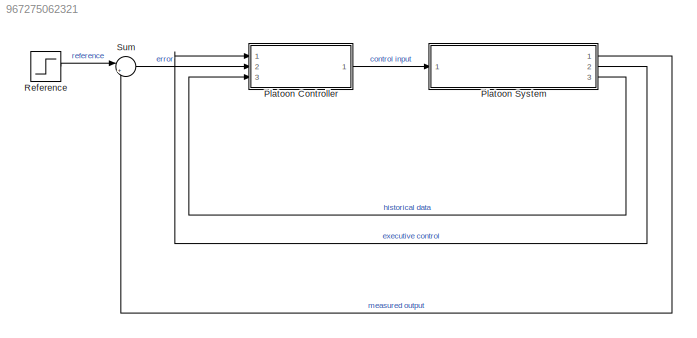
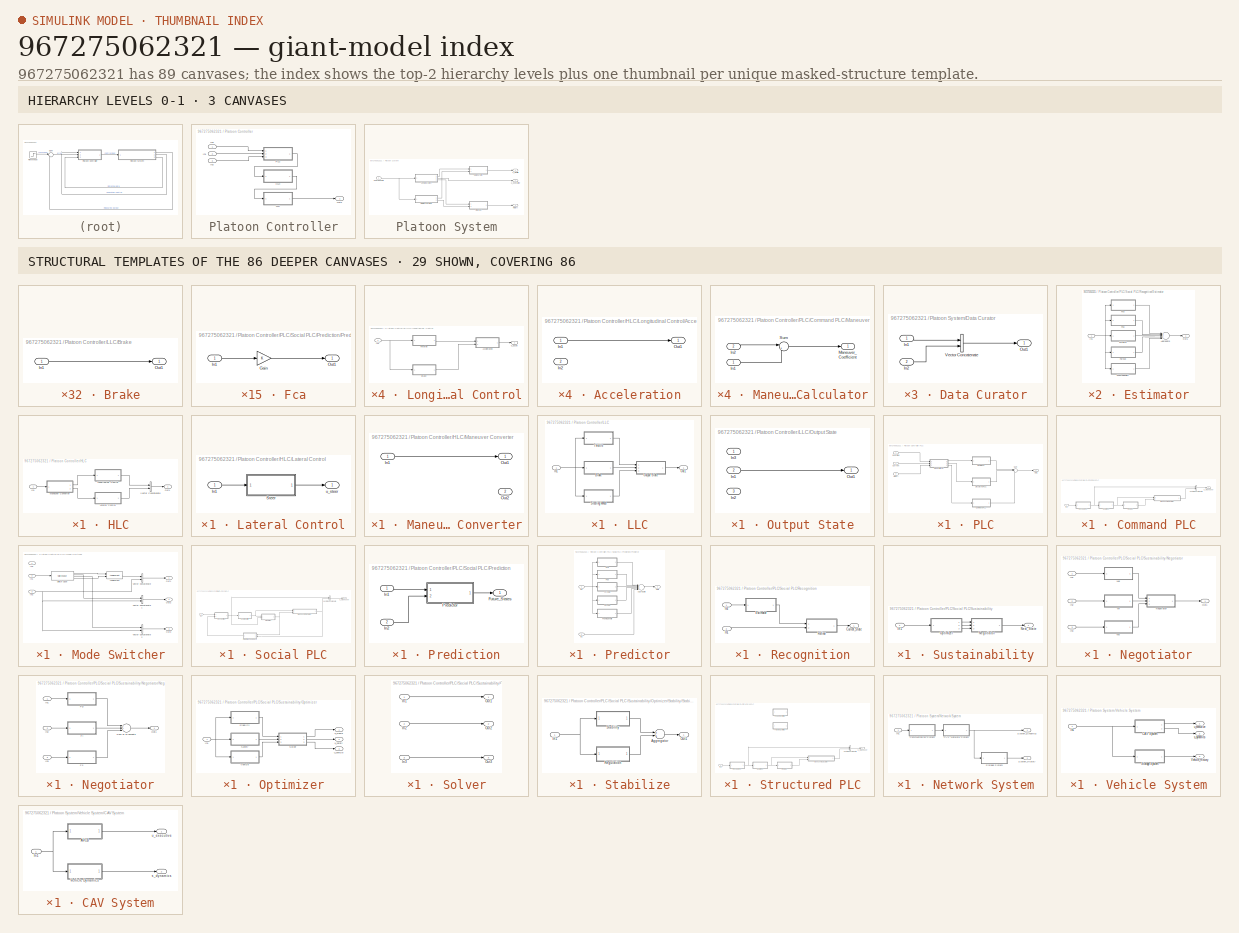
[diagram: thumbnail index - top-2 hierarchy levels (3 canvases) + 29 structural-template representatives of the remaining 86 canvases]
MODEL slx_967275062321
KIND model
CONFIG AbsTol = auto
CONFIG EnableMultiTasking = on
CONFIG FixedStep = auto
CONFIG MaxStep = 0.01
CONFIG MinStep = auto
CONFIG RelTol = 1e-4
CONFIG SampleTimeConstraint = Unconstrained
CONFIG Solver = VariableStepAuto
CONFIG SolverName = VariableStepAuto
CONFIG StartTime = 0.0
CONFIG StopTime = 2
BLOCK [SubSystem] Platoon Controller
  Ports = [3, 1]
  RequestExecContextInheritance = off
BLOCK [SubSystem] Platoon Controller/HLC
  Ports = [1, 1]
  RequestExecContextInheritance = off
BLOCK [Inport] Platoon Controller/HLC/In1
  IconDisplay = Port number
BLOCK [SubSystem] Platoon Controller/HLC/Lateral Control
  Ports = [1, 1]
  RequestExecContextInheritance = off
BLOCK [Inport] Platoon Controller/HLC/Lateral Control/In1
  IconDisplay = Port number
BLOCK [SubSystem] Platoon Controller/HLC/Lateral Control/Steer 
  Ports = [1, 1]
  RequestExecContextInheritance = off
BLOCK [Inport] Platoon Controller/HLC/Lateral Control/Steer /In1
  IconDisplay = Port number
BLOCK [Outport] Platoon Controller/HLC/Lateral Control/Steer /Out1
  IconDisplay = Port number
BLOCK [Outport] Platoon Controller/HLC/Lateral Control/u_steer
  IconDisplay = Port number
BLOCK [SubSystem] Platoon Controller/HLC/Longitudinal Control
  Ports = [1, 1]
  RequestExecContextInheritance = off
BLOCK [SubSystem] Platoon Controller/HLC/Longitudinal Control/Acceleration
  Ports = [2, 1]
  RequestExecContextInheritance = off
BLOCK [Inport] Platoon Controller/HLC/Longitudinal Control/Acceleration/In1
  IconDisplay = Port number
BLOCK [Inport] Platoon Controller/HLC/Longitudinal Control/Acceleration/In2
  IconDisplay = Port number
  Port = 2
BLOCK [Outport] Platoon Controller/HLC/Longitudinal Control/Acceleration/Out1
  IconDisplay = Port number
BLOCK [SubSystem] Platoon Controller/HLC/Longitudinal Control/Brake
  Ports = [1, 1]
  RequestExecContextInheritance = off
BLOCK [Inport] Platoon Controller/HLC/Longitudinal Control/Brake/In1
  IconDisplay = Port number
BLOCK [Outport] Platoon Controller/HLC/Longitudinal Control/Brake/Out1
  IconDisplay = Port number
BLOCK [Inport] Platoon Controller/HLC/Longitudinal Control/In1
  IconDisplay = Port number
BLOCK [SubSystem] Platoon Controller/HLC/Longitudinal Control/Throttle
  Ports = [1, 1]
  RequestExecContextInheritance = off
BLOCK [Inport] Platoon Controller/HLC/Longitudinal Control/Throttle/In1
  IconDisplay = Port number
BLOCK [Outport] Platoon Controller/HLC/Longitudinal Control/Throttle/Out1
  IconDisplay = Port number
BLOCK [Outport] Platoon Controller/HLC/Longitudinal Control/u_accel 
  IconDisplay = Port number
BLOCK [SubSystem] Platoon Controller/HLC/Maneuver Converter
  Ports = [1, 2]
  RequestExecContextInheritance = off
BLOCK [Inport] Platoon Controller/HLC/Maneuver Converter/In1
  IconDisplay = Port number
BLOCK [Outport] Platoon Controller/HLC/Maneuver Converter/Out1
  IconDisplay = Port number
BLOCK [Outport] Platoon Controller/HLC/Maneuver Converter/Out2
  IconDisplay = Port number
  Port = 2
BLOCK [Outport] Platoon Controller/HLC/Out1
  IconDisplay = Port number
BLOCK [Concatenate] Platoon Controller/HLC/Vector Concatenate
  Ports = [2, 1]
BLOCK [Inport] Platoon Controller/In1
  IconDisplay = Port number
  Port = 2
BLOCK [Inport] Platoon Controller/In2
  IconDisplay = Port number
  Port = 3
BLOCK [Inport] Platoon Controller/In3
  IconDisplay = Port number
BLOCK [SubSystem] Platoon Controller/LLC
  Ports = [1, 1]
  RequestExecContextInheritance = off
BLOCK [SubSystem] Platoon Controller/LLC/Brake
  Ports = [1, 1]
  RequestExecContextInheritance = off
BLOCK [Inport] Platoon Controller/LLC/Brake/In1
  IconDisplay = Port number
BLOCK [Outport] Platoon Controller/LLC/Brake/Out1
  IconDisplay = Port number
BLOCK [Inport] Platoon Controller/LLC/In1
  IconDisplay = Port number
BLOCK [Outport] Platoon Controller/LLC/Out1
  IconDisplay = Port number
BLOCK [SubSystem] Platoon Controller/LLC/Output State
  Ports = [3, 1]
  RequestExecContextInheritance = off
BLOCK [Inport] Platoon Controller/LLC/Output State/In1
  IconDisplay = Port number
  Port = 2
BLOCK [Inport] Platoon Controller/LLC/Output State/In2
  IconDisplay = Port number
  Port = 3
BLOCK [Inport] Platoon Controller/LLC/Output State/In3
  IconDisplay = Port number
BLOCK [Outport] Platoon Controller/LLC/Output State/Out1
  IconDisplay = Port number
BLOCK [SubSystem] Platoon Controller/LLC/Steering Wheel
  Ports = [1, 1]
  RequestExecContextInheritance = off
BLOCK [Inport] Platoon Controller/LLC/Steering Wheel/In1
  IconDisplay = Port number
BLOCK [Outport] Platoon Controller/LLC/Steering Wheel/Out1
  IconDisplay = Port number
BLOCK [SubSystem] Platoon Controller/LLC/Throttle
  Ports = [1, 1]
  RequestExecContextInheritance = off
BLOCK [Inport] Platoon Controller/LLC/Throttle/In1
  IconDisplay = Port number
BLOCK [Outport] Platoon Controller/LLC/Throttle/Out1
  IconDisplay = Port number
BLOCK [Outport] Platoon Controller/Out1
  IconDisplay = Port number
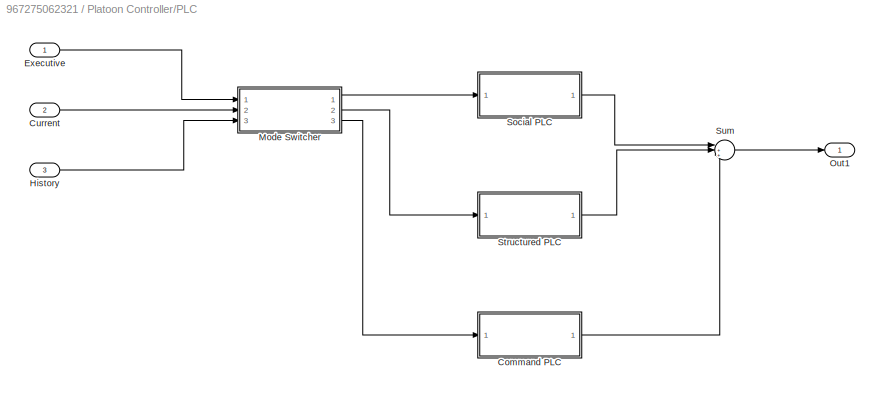
BLOCK [SubSystem] Platoon Controller/PLC
  Ports = [3, 1]
  RequestExecContextInheritance = off
BLOCK [SubSystem] Platoon Controller/PLC/Command PLC
  Ports = [1, 1]
  RequestExecContextInheritance = off
BLOCK [Inport] Platoon Controller/PLC/Command PLC/In1
  IconDisplay = Port number
BLOCK [SubSystem] Platoon Controller/PLC/Command PLC/Maneuver Calculator
  Ports = [2, 1]
  RequestExecContextInheritance = off
BLOCK [Inport] Platoon Controller/PLC/Command PLC/Maneuver Calculator/In1
  IconDisplay = Port number
BLOCK [Inport] Platoon Controller/PLC/Command PLC/Maneuver Calculator/In2
  IconDisplay = Port number
  Port = 2
BLOCK [Outport] Platoon Controller/PLC/Command PLC/Maneuver Calculator/Maneuver_Coefficient
  IconDisplay = Port number
BLOCK [Sum] Platoon Controller/PLC/Command PLC/Maneuver Calculator/Sum
  IconShape = round
  InputSameDT = off
  Inputs = |++
  OutDataTypeStr = Inherit: Inherit via internal rule
  Ports = [2, 1]
  SaturateOnIntegerOverflow = off
BLOCK [SubSystem] Platoon Controller/PLC/Command PLC/Predictor
  Ports = [1, 1]
  RequestExecContextInheritance = off
BLOCK [Inport] Platoon Controller/PLC/Command PLC/Predictor/In1
  IconDisplay = Port number
BLOCK [Outport] Platoon Controller/PLC/Command PLC/Predictor/Out1
  IconDisplay = Port number
BLOCK [SubSystem] Platoon Controller/PLC/Command PLC/Recognizer
  Ports = [1, 1]
  RequestExecContextInheritance = off
BLOCK [Inport] Platoon Controller/PLC/Command PLC/Recognizer/In1
  IconDisplay = Port number
BLOCK [Outport] Platoon Controller/PLC/Command PLC/Recognizer/Out1
  IconDisplay = Port number
BLOCK [SubSystem] Platoon Controller/PLC/Command PLC/Sustainer
  Ports = [1, 1]
  RequestExecContextInheritance = off
BLOCK [Inport] Platoon Controller/PLC/Command PLC/Sustainer/In1
  IconDisplay = Port number
BLOCK [Outport] Platoon Controller/PLC/Command PLC/Sustainer/Out1
  IconDisplay = Port number
BLOCK [Concatenate] Platoon Controller/PLC/Command PLC/Vector Concatenate
  Ports = [2, 1]
BLOCK [Outport] Platoon Controller/PLC/Command PLC/u_maneuver
  IconDisplay = Port number
BLOCK [Inport] Platoon Controller/PLC/Current
  IconDisplay = Port number
  Port = 2
BLOCK [Inport] Platoon Controller/PLC/Executive
  IconDisplay = Port number
BLOCK [Inport] Platoon Controller/PLC/History
  IconDisplay = Port number
  Port = 3
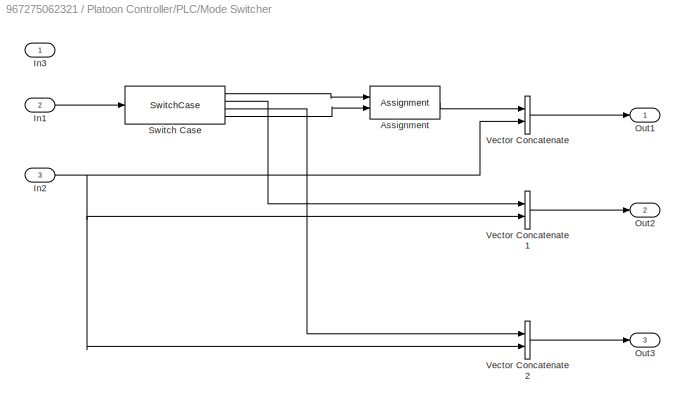
BLOCK [SubSystem] Platoon Controller/PLC/Mode Switcher
  Ports = [3, 3]
  RequestExecContextInheritance = off
BLOCK [Assignment] Platoon Controller/PLC/Mode Switcher/Assignment
  DiagnosticForDimensions = Warning
  IndexOptions = Index vector (dialog)
  Indices = 1
  OutputSizes = 1
  Ports = [2, 1]
BLOCK [Inport] Platoon Controller/PLC/Mode Switcher/In1
  IconDisplay = Port number
  Port = 2
BLOCK [Inport] Platoon Controller/PLC/Mode Switcher/In2
  IconDisplay = Port number
  Port = 3
BLOCK [Inport] Platoon Controller/PLC/Mode Switcher/In3
  IconDisplay = Port number
BLOCK [Outport] Platoon Controller/PLC/Mode Switcher/Out1
  IconDisplay = Port number
BLOCK [Outport] Platoon Controller/PLC/Mode Switcher/Out2
  IconDisplay = Port number
  Port = 2
BLOCK [Outport] Platoon Controller/PLC/Mode Switcher/Out3
  IconDisplay = Port number
  Port = 3
BLOCK [SwitchCase] Platoon Controller/PLC/Mode Switcher/Switch Case
  CaseConditions = {1, 2, 3}
  Ports = [1, 4]
BLOCK [Concatenate] Platoon Controller/PLC/Mode Switcher/Vector Concatenate
  Ports = [2, 1]
BLOCK [Concatenate] Platoon Controller/PLC/Mode Switcher/Vector Concatenate1
  Ports = [2, 1]
BLOCK [Concatenate] Platoon Controller/PLC/Mode Switcher/Vector Concatenate2
  Ports = [2, 1]
BLOCK [Outport] Platoon Controller/PLC/Out1
  IconDisplay = Port number
BLOCK [SubSystem] Platoon Controller/PLC/Social PLC
  Ports = [1, 1]
  RequestExecContextInheritance = off
BLOCK [Inport] Platoon Controller/PLC/Social PLC/In1
  IconDisplay = Port number
BLOCK [SubSystem] Platoon Controller/PLC/Social PLC/Maneuver Calculator
  Ports = [2, 1]
  RequestExecContextInheritance = off
BLOCK [Inport] Platoon Controller/PLC/Social PLC/Maneuver Calculator/In1
  IconDisplay = Port number
BLOCK [Inport] Platoon Controller/PLC/Social PLC/Maneuver Calculator/In2
  IconDisplay = Port number
  Port = 2
BLOCK [Outport] Platoon Controller/PLC/Social PLC/Maneuver Calculator/Maneuver_Coefficient
  IconDisplay = Port number
BLOCK [Sum] Platoon Controller/PLC/Social PLC/Maneuver Calculator/Sum
  IconShape = round
  InputSameDT = off
  Inputs = |++
  OutDataTypeStr = Inherit: Inherit via internal rule
  Ports = [2, 1]
  SaturateOnIntegerOverflow = off
BLOCK [SubSystem] Platoon Controller/PLC/Social PLC/Prediction
  Ports = [2, 1]
  RequestExecContextInheritance = off
BLOCK [Outport] Platoon Controller/PLC/Social PLC/Prediction/Future_States
  IconDisplay = Port number
BLOCK [Inport] Platoon Controller/PLC/Social PLC/Prediction/In1
  IconDisplay = Port number
BLOCK [Inport] Platoon Controller/PLC/Social PLC/Prediction/In2
  IconDisplay = Port number
  Port = 2
BLOCK [SubSystem] Platoon Controller/PLC/Social PLC/Prediction/Predictor
  Ports = [2, 1]
  RequestExecContextInheritance = off
BLOCK [Sum] Platoon Controller/PLC/Social PLC/Prediction/Predictor/Aggregate
  InputSameDT = off
  Inputs = ++++++
  OutDataTypeStr = Inherit: Inherit via internal rule
  Ports = [6, 1]
  SaturateOnIntegerOverflow = off
BLOCK [SubSystem] Platoon Controller/PLC/Social PLC/Prediction/Predictor/Fca
  Ports = [1, 1]
  RequestExecContextInheritance = off
BLOCK [Gain] Platoon Controller/PLC/Social PLC/Prediction/Predictor/Fca/Gain
  OutDataTypeStr = Inherit: Inherit via internal rule
  ParamDataTypeStr = Inherit: Inherit via internal rule
  SaturateOnIntegerOverflow = off
BLOCK [Inport] Platoon Controller/PLC/Social PLC/Prediction/Predictor/Fca/In1
  IconDisplay = Port number
BLOCK [Outport] Platoon Controller/PLC/Social PLC/Prediction/Predictor/Fca/Out1
  IconDisplay = Port number
BLOCK [SubSystem] Platoon Controller/PLC/Social PLC/Prediction/Predictor/Fcrowd
  Ports = [1, 1]
  RequestExecContextInheritance = off
BLOCK [Gain] Platoon Controller/PLC/Social PLC/Prediction/Predictor/Fcrowd/Gain
  OutDataTypeStr = Inherit: Inherit via internal rule
  ParamDataTypeStr = Inherit: Inherit via internal rule
  SaturateOnIntegerOverflow = off
BLOCK [Inport] Platoon Controller/PLC/Social PLC/Prediction/Predictor/Fcrowd/In1
  IconDisplay = Port number
BLOCK [Outport] Platoon Controller/PLC/Social PLC/Prediction/Predictor/Fcrowd/Out1
  IconDisplay = Port number
BLOCK [SubSystem] Platoon Controller/PLC/Social PLC/Prediction/Predictor/Fgroup
  Ports = [1, 1]
  RequestExecContextInheritance = off
BLOCK [Gain] Platoon Controller/PLC/Social PLC/Prediction/Predictor/Fgroup/Gain
  OutDataTypeStr = Inherit: Inherit via internal rule
  ParamDataTypeStr = Inherit: Inherit via internal rule
  SaturateOnIntegerOverflow = off
BLOCK [Inport] Platoon Controller/PLC/Social PLC/Prediction/Predictor/Fgroup/In1
  IconDisplay = Port number
BLOCK [Outport] Platoon Controller/PLC/Social PLC/Prediction/Predictor/Fgroup/Out1
  IconDisplay = Port number
BLOCK [SubSystem] Platoon Controller/PLC/Social PLC/Prediction/Predictor/Fhomogeneity
  Ports = [1, 1]
  RequestExecContextInheritance = off
BLOCK [Gain] Platoon Controller/PLC/Social PLC/Prediction/Predictor/Fhomogeneity/Gain
  OutDataTypeStr = Inherit: Inherit via internal rule
  ParamDataTypeStr = Inherit: Inherit via internal rule
  SaturateOnIntegerOverflow = off
BLOCK [Inport] Platoon Controller/PLC/Social PLC/Prediction/Predictor/Fhomogeneity/In1
  IconDisplay = Port number
BLOCK [Outport] Platoon Controller/PLC/Social PLC/Prediction/Predictor/Fhomogeneity/Out1
  IconDisplay = Port number
BLOCK [SubSystem] Platoon Controller/PLC/Social PLC/Prediction/Predictor/Foa
  Ports = [1, 1]
  RequestExecContextInheritance = off
BLOCK [Gain] Platoon Controller/PLC/Social PLC/Prediction/Predictor/Foa/Gain
  OutDataTypeStr = Inherit: Inherit via internal rule
  ParamDataTypeStr = Inherit: Inherit via internal rule
  SaturateOnIntegerOverflow = off
BLOCK [Inport] Platoon Controller/PLC/Social PLC/Prediction/Predictor/Foa/In1
  IconDisplay = Port number
BLOCK [Outport] Platoon Controller/PLC/Social PLC/Prediction/Predictor/Foa/Out1
  IconDisplay = Port number
BLOCK [Inport] Platoon Controller/PLC/Social PLC/Prediction/Predictor/In1
  IconDisplay = Port number
BLOCK [Inport] Platoon Controller/PLC/Social PLC/Prediction/Predictor/In2
  IconDisplay = Port number
  Port = 2
BLOCK [Outport] Platoon Controller/PLC/Social PLC/Prediction/Predictor/Out1
  IconDisplay = Port number
BLOCK [SubSystem] Platoon Controller/PLC/Social PLC/Predictive Feedback
  Ports = [2, 1]
  RequestExecContextInheritance = off
BLOCK [Inport] Platoon Controller/PLC/Social PLC/Predictive Feedback/In1
  IconDisplay = Port number
BLOCK [Inport] Platoon Controller/PLC/Social PLC/Predictive Feedback/In2
  IconDisplay = Port number
  Port = 2
BLOCK [Outport] Platoon Controller/PLC/Social PLC/Predictive Feedback/Out1
  IconDisplay = Port number
BLOCK [Concatenate] Platoon Controller/PLC/Social PLC/Predictive Feedback/Vector Concatenate
  Ports = [2, 1]
BLOCK [SubSystem] Platoon Controller/PLC/Social PLC/Recognition
  Ports = [2, 1]
  RequestExecContextInheritance = off
BLOCK [Outport] Platoon Controller/PLC/Social PLC/Recognition/Current_State
  IconDisplay = Port number
BLOCK [SubSystem] Platoon Controller/PLC/Social PLC/Recognition/Estimator
  Ports = [1, 1]
  RequestExecContextInheritance = off
BLOCK [Sum] Platoon Controller/PLC/Social PLC/Recognition/Estimator/Aggregate
  InputSameDT = off
  Inputs = +++++
  OutDataTypeStr = Inherit: Inherit via internal rule
  Ports = [5, 1]
  SaturateOnIntegerOverflow = off
BLOCK [SubSystem] Platoon Controller/PLC/Social PLC/Recognition/Estimator/Fca
  Ports = [1, 1]
  RequestExecContextInheritance = off
BLOCK [Gain] Platoon Controller/PLC/Social PLC/Recognition/Estimator/Fca/Gain
  OutDataTypeStr = Inherit: Inherit via internal rule
  ParamDataTypeStr = Inherit: Inherit via internal rule
  SaturateOnIntegerOverflow = off
BLOCK [Inport] Platoon Controller/PLC/Social PLC/Recognition/Estimator/Fca/In1
  IconDisplay = Port number
BLOCK [Outport] Platoon Controller/PLC/Social PLC/Recognition/Estimator/Fca/Out1
  IconDisplay = Port number
BLOCK [SubSystem] Platoon Controller/PLC/Social PLC/Recognition/Estimator/Fcrowd
  Ports = [1, 1]
  RequestExecContextInheritance = off
BLOCK [Gain] Platoon Controller/PLC/Social PLC/Recognition/Estimator/Fcrowd/Gain
  OutDataTypeStr = Inherit: Inherit via internal rule
  ParamDataTypeStr = Inherit: Inherit via internal rule
  SaturateOnIntegerOverflow = off
BLOCK [Inport] Platoon Controller/PLC/Social PLC/Recognition/Estimator/Fcrowd/In1
  IconDisplay = Port number
BLOCK [Outport] Platoon Controller/PLC/Social PLC/Recognition/Estimator/Fcrowd/Out1
  IconDisplay = Port number
BLOCK [SubSystem] Platoon Controller/PLC/Social PLC/Recognition/Estimator/Fgroup
  Ports = [1, 1]
  RequestExecContextInheritance = off
BLOCK [Gain] Platoon Controller/PLC/Social PLC/Recognition/Estimator/Fgroup/Gain
  OutDataTypeStr = Inherit: Inherit via internal rule
  ParamDataTypeStr = Inherit: Inherit via internal rule
  SaturateOnIntegerOverflow = off
BLOCK [Inport] Platoon Controller/PLC/Social PLC/Recognition/Estimator/Fgroup/In1
  IconDisplay = Port number
BLOCK [Outport] Platoon Controller/PLC/Social PLC/Recognition/Estimator/Fgroup/Out1
  IconDisplay = Port number
BLOCK [SubSystem] Platoon Controller/PLC/Social PLC/Recognition/Estimator/Fhomogeneity
  Ports = [1, 1]
  RequestExecContextInheritance = off
BLOCK [Gain] Platoon Controller/PLC/Social PLC/Recognition/Estimator/Fhomogeneity/Gain
  OutDataTypeStr = Inherit: Inherit via internal rule
  ParamDataTypeStr = Inherit: Inherit via internal rule
  SaturateOnIntegerOverflow = off
BLOCK [Inport] Platoon Controller/PLC/Social PLC/Recognition/Estimator/Fhomogeneity/In1
  IconDisplay = Port number
BLOCK [Outport] Platoon Controller/PLC/Social PLC/Recognition/Estimator/Fhomogeneity/Out1
  IconDisplay = Port number
BLOCK [SubSystem] Platoon Controller/PLC/Social PLC/Recognition/Estimator/Foa
  Ports = [1, 1]
  RequestExecContextInheritance = off
BLOCK [Gain] Platoon Controller/PLC/Social PLC/Recognition/Estimator/Foa/Gain
  OutDataTypeStr = Inherit: Inherit via internal rule
  ParamDataTypeStr = Inherit: Inherit via internal rule
  SaturateOnIntegerOverflow = off
BLOCK [Inport] Platoon Controller/PLC/Social PLC/Recognition/Estimator/Foa/In1
  IconDisplay = Port number
BLOCK [Outport] Platoon Controller/PLC/Social PLC/Recognition/Estimator/Foa/Out1
  IconDisplay = Port number
BLOCK [Inport] Platoon Controller/PLC/Social PLC/Recognition/Estimator/In1
  IconDisplay = Port number
BLOCK [Outport] Platoon Controller/PLC/Social PLC/Recognition/Estimator/Out1
  IconDisplay = Port number
BLOCK [Inport] Platoon Controller/PLC/Social PLC/Recognition/In1
  IconDisplay = Port number
  Port = 2
BLOCK [Inport] Platoon Controller/PLC/Social PLC/Recognition/In2
  IconDisplay = Port number
BLOCK [SubSystem] Platoon Controller/PLC/Social PLC/Recognition/Refiner
  Ports = [2, 1]
  RequestExecContextInheritance = off
BLOCK [Inport] Platoon Controller/PLC/Social PLC/Recognition/Refiner/In1
  IconDisplay = Port number
BLOCK [Inport] Platoon Controller/PLC/Social PLC/Recognition/Refiner/In2
  IconDisplay = Port number
  Port = 2
BLOCK [Outport] Platoon Controller/PLC/Social PLC/Recognition/Refiner/Out1
  IconDisplay = Port number
BLOCK [Sum] Platoon Controller/PLC/Social PLC/Recognition/Refiner/Sum of Elements
  InputSameDT = off
  OutDataTypeStr = Inherit: Inherit via internal rule
  Ports = [2, 1]
  SaturateOnIntegerOverflow = off
BLOCK [SubSystem] Platoon Controller/PLC/Social PLC/Sustainability
  Ports = [1, 1]
  RequestExecContextInheritance = off
BLOCK [Inport] Platoon Controller/PLC/Social PLC/Sustainability/In1
  IconDisplay = Port number
BLOCK [SubSystem] Platoon Controller/PLC/Social PLC/Sustainability/Negotiator
  Ports = [3, 1]
  RequestExecContextInheritance = off
BLOCK [Inport] Platoon Controller/PLC/Social PLC/Sustainability/Negotiator/In1
  IconDisplay = Port number
BLOCK [Inport] Platoon Controller/PLC/Social PLC/Sustainability/Negotiator/In2
  IconDisplay = Port number
  Port = 2
BLOCK [Inport] Platoon Controller/PLC/Social PLC/Sustainability/Negotiator/In3
  IconDisplay = Port number
  Port = 3
BLOCK [SubSystem] Platoon Controller/PLC/Social PLC/Sustainability/Negotiator/Negotiator
  Ports = [3, 1]
  RequestExecContextInheritance = off
BLOCK [SubSystem] Platoon Controller/PLC/Social PLC/Sustainability/Negotiator/Negotiator/Fg
  Ports = [1, 1]
  RequestExecContextInheritance = off
BLOCK [Inport] Platoon Controller/PLC/Social PLC/Sustainability/Negotiator/Negotiator/Fg/In1
  IconDisplay = Port number
BLOCK [Outport] Platoon Controller/PLC/Social PLC/Sustainability/Negotiator/Negotiator/Fg/Out1
  IconDisplay = Port number
BLOCK [SubSystem] Platoon Controller/PLC/Social PLC/Sustainability/Negotiator/Negotiator/Fl
  Ports = [1, 1]
  RequestExecContextInheritance = off
BLOCK [Inport] Platoon Controller/PLC/Social PLC/Sustainability/Negotiator/Negotiator/Fl/In1
  IconDisplay = Port number
BLOCK [Outport] Platoon Controller/PLC/Social PLC/Sustainability/Negotiator/Negotiator/Fl/Out1
  IconDisplay = Port number
BLOCK [SubSystem] Platoon Controller/PLC/Social PLC/Sustainability/Negotiator/Negotiator/Fs
  Ports = [1, 1]
  RequestExecContextInheritance = off
BLOCK [Inport] Platoon Controller/PLC/Social PLC/Sustainability/Negotiator/Negotiator/Fs/In1
  IconDisplay = Port number
BLOCK [Outport] Platoon Controller/PLC/Social PLC/Sustainability/Negotiator/Negotiator/Fs/Out1
  IconDisplay = Port number
BLOCK [Inport] Platoon Controller/PLC/Social PLC/Sustainability/Negotiator/Negotiator/In1
  IconDisplay = Port number
BLOCK [Inport] Platoon Controller/PLC/Social PLC/Sustainability/Negotiator/Negotiator/In2
  IconDisplay = Port number
  Port = 2
BLOCK [Inport] Platoon Controller/PLC/Social PLC/Sustainability/Negotiator/Negotiator/In3
  IconDisplay = Port number
  Port = 3
BLOCK [Outport] Platoon Controller/PLC/Social PLC/Sustainability/Negotiator/Negotiator/Out1
  IconDisplay = Port number
BLOCK [Sum] Platoon Controller/PLC/Social PLC/Sustainability/Negotiator/Negotiator/Sum of Elements
  InputSameDT = off
  Inputs = +++
  OutDataTypeStr = Inherit: Inherit via internal rule
  Ports = [3, 1]
  SaturateOnIntegerOverflow = off
BLOCK [Outport] Platoon Controller/PLC/Social PLC/Sustainability/Negotiator/Out1
  IconDisplay = Port number
BLOCK [SubSystem] Platoon Controller/PLC/Social PLC/Sustainability/Negotiator/Wg
  Ports = [1, 1]
  RequestExecContextInheritance = off
BLOCK [Inport] Platoon Controller/PLC/Social PLC/Sustainability/Negotiator/Wg/In1
  IconDisplay = Port number
BLOCK [Outport] Platoon Controller/PLC/Social PLC/Sustainability/Negotiator/Wg/Out1
  IconDisplay = Port number
BLOCK [SubSystem] Platoon Controller/PLC/Social PLC/Sustainability/Negotiator/Wl
  Ports = [1, 1]
  RequestExecContextInheritance = off
BLOCK [Inport] Platoon Controller/PLC/Social PLC/Sustainability/Negotiator/Wl/In1
  IconDisplay = Port number
BLOCK [Outport] Platoon Controller/PLC/Social PLC/Sustainability/Negotiator/Wl/Out1
  IconDisplay = Port number
BLOCK [SubSystem] Platoon Controller/PLC/Social PLC/Sustainability/Negotiator/Ws
  Ports = [1, 1]
  RequestExecContextInheritance = off
BLOCK [Inport] Platoon Controller/PLC/Social PLC/Sustainability/Negotiator/Ws/In1
  IconDisplay = Port number
BLOCK [Outport] Platoon Controller/PLC/Social PLC/Sustainability/Negotiator/Ws/Out1
  IconDisplay = Port number
BLOCK [Outport] Platoon Controller/PLC/Social PLC/Sustainability/Next_State
  IconDisplay = Port number
BLOCK [SubSystem] Platoon Controller/PLC/Social PLC/Sustainability/Optimizer
  Ports = [1, 3]
  RequestExecContextInheritance = off
BLOCK [Inport] Platoon Controller/PLC/Social PLC/Sustainability/Optimizer/In1
  IconDisplay = Port number
BLOCK [SubSystem] Platoon Controller/PLC/Social PLC/Sustainability/Optimizer/Safety
  Ports = [1, 1]
  RequestExecContextInheritance = off
BLOCK [SubSystem] Platoon Controller/PLC/Social PLC/Sustainability/Optimizer/Safety/Adversary
  Ports = [1, 1]
  RequestExecContextInheritance = off
BLOCK [Inport] Platoon Controller/PLC/Social PLC/Sustainability/Optimizer/Safety/Adversary/In1
  IconDisplay = Port number
BLOCK [Outport] Platoon Controller/PLC/Social PLC/Sustainability/Optimizer/Safety/Adversary/Out1
  IconDisplay = Port number
BLOCK [SubSystem] Platoon Controller/PLC/Social PLC/Sustainability/Optimizer/Safety/Danger
  Ports = [1, 1]
  RequestExecContextInheritance = off
BLOCK [Inport] Platoon Controller/PLC/Social PLC/Sustainability/Optimizer/Safety/Danger/In1
  IconDisplay = Port number
BLOCK [Outport] Platoon Controller/PLC/Social PLC/Sustainability/Optimizer/Safety/Danger/Out1
  IconDisplay = Port number
BLOCK [Inport] Platoon Controller/PLC/Social PLC/Sustainability/Optimizer/Safety/In1
  IconDisplay = Port number
BLOCK [SubSystem] Platoon Controller/PLC/Social PLC/Sustainability/Optimizer/Safety/Solver
  Ports = [2, 1]
  RequestExecContextInheritance = off
BLOCK [Inport] Platoon Controller/PLC/Social PLC/Sustainability/Optimizer/Safety/Solver/In1
  IconDisplay = Port number
BLOCK [Inport] Platoon Controller/PLC/Social PLC/Sustainability/Optimizer/Safety/Solver/In2
  IconDisplay = Port number
  Port = 2
BLOCK [Outport] Platoon Controller/PLC/Social PLC/Sustainability/Optimizer/Safety/Solver/Out1
  IconDisplay = Port number
BLOCK [Outport] Platoon Controller/PLC/Social PLC/Sustainability/Optimizer/Safety/u_safety
  IconDisplay = Port number
BLOCK [SubSystem] Platoon Controller/PLC/Social PLC/Sustainability/Optimizer/Solver
  Ports = [3, 3]
  RequestExecContextInheritance = off
BLOCK [Inport] Platoon Controller/PLC/Social PLC/Sustainability/Optimizer/Solver/In1
  IconDisplay = Port number
BLOCK [Inport] Platoon Controller/PLC/Social PLC/Sustainability/Optimizer/Solver/In2
  IconDisplay = Port number
  Port = 2
BLOCK [Inport] Platoon Controller/PLC/Social PLC/Sustainability/Optimizer/Solver/In3
  IconDisplay = Port number
  Port = 3
BLOCK [Outport] Platoon Controller/PLC/Social PLC/Sustainability/Optimizer/Solver/Out1
  IconDisplay = Port number
BLOCK [Outport] Platoon Controller/PLC/Social PLC/Sustainability/Optimizer/Solver/Out2
  IconDisplay = Port number
  Port = 2
BLOCK [Outport] Platoon Controller/PLC/Social PLC/Sustainability/Optimizer/Solver/Out3
  IconDisplay = Port number
  Port = 3
BLOCK [SubSystem] Platoon Controller/PLC/Social PLC/Sustainability/Optimizer/Stability
  Ports = [1, 1]
  RequestExecContextInheritance = off
BLOCK [SubSystem] Platoon Controller/PLC/Social PLC/Sustainability/Optimizer/Stability/Flock
  Ports = [1, 1]
  RequestExecContextInheritance = off
BLOCK [Sum] Platoon Controller/PLC/Social PLC/Sustainability/Optimizer/Stability/Flock/Aggregate
  InputSameDT = off
  Inputs = +++++
  OutDataTypeStr = Inherit: Inherit via internal rule
  Ports = [5, 1]
  SaturateOnIntegerOverflow = off
BLOCK [SubSystem] Platoon Controller/PLC/Social PLC/Sustainability/Optimizer/Stability/Flock/Fca
  Ports = [1, 1]
  RequestExecContextInheritance = off
BLOCK [Gain] Platoon Controller/PLC/Social PLC/Sustainability/Optimizer/Stability/Flock/Fca/Gain
  OutDataTypeStr = Inherit: Inherit via internal rule
  ParamDataTypeStr = Inherit: Inherit via internal rule
  SaturateOnIntegerOverflow = off
BLOCK [Inport] Platoon Controller/PLC/Social PLC/Sustainability/Optimizer/Stability/Flock/Fca/In1
  IconDisplay = Port number
BLOCK [Outport] Platoon Controller/PLC/Social PLC/Sustainability/Optimizer/Stability/Flock/Fca/Out1
  IconDisplay = Port number
BLOCK [SubSystem] Platoon Controller/PLC/Social PLC/Sustainability/Optimizer/Stability/Flock/Fcrowd
  Ports = [1, 1]
  RequestExecContextInheritance = off
BLOCK [Gain] Platoon Controller/PLC/Social PLC/Sustainability/Optimizer/Stability/Flock/Fcrowd/Gain
  OutDataTypeStr = Inherit: Inherit via internal rule
  ParamDataTypeStr = Inherit: Inherit via internal rule
  SaturateOnIntegerOverflow = off
BLOCK [Inport] Platoon Controller/PLC/Social PLC/Sustainability/Optimizer/Stability/Flock/Fcrowd/In1
  IconDisplay = Port number
BLOCK [Outport] Platoon Controller/PLC/Social PLC/Sustainability/Optimizer/Stability/Flock/Fcrowd/Out1
  IconDisplay = Port number
BLOCK [SubSystem] Platoon Controller/PLC/Social PLC/Sustainability/Optimizer/Stability/Flock/Fgroup
  Ports = [1, 1]
  RequestExecContextInheritance = off
BLOCK [Gain] Platoon Controller/PLC/Social PLC/Sustainability/Optimizer/Stability/Flock/Fgroup/Gain
  OutDataTypeStr = Inherit: Inherit via internal rule
  ParamDataTypeStr = Inherit: Inherit via internal rule
  SaturateOnIntegerOverflow = off
BLOCK [Inport] Platoon Controller/PLC/Social PLC/Sustainability/Optimizer/Stability/Flock/Fgroup/In1
  IconDisplay = Port number
BLOCK [Outport] Platoon Controller/PLC/Social PLC/Sustainability/Optimizer/Stability/Flock/Fgroup/Out1
  IconDisplay = Port number
BLOCK [SubSystem] Platoon Controller/PLC/Social PLC/Sustainability/Optimizer/Stability/Flock/Fhomogeneity
  Ports = [1, 1]
  RequestExecContextInheritance = off
BLOCK [Gain] Platoon Controller/PLC/Social PLC/Sustainability/Optimizer/Stability/Flock/Fhomogeneity/Gain
  OutDataTypeStr = Inherit: Inherit via internal rule
  ParamDataTypeStr = Inherit: Inherit via internal rule
  SaturateOnIntegerOverflow = off
BLOCK [Inport] Platoon Controller/PLC/Social PLC/Sustainability/Optimizer/Stability/Flock/Fhomogeneity/In1
  IconDisplay = Port number
BLOCK [Outport] Platoon Controller/PLC/Social PLC/Sustainability/Optimizer/Stability/Flock/Fhomogeneity/Out1
  IconDisplay = Port number
BLOCK [SubSystem] Platoon Controller/PLC/Social PLC/Sustainability/Optimizer/Stability/Flock/Foa
  Ports = [1, 1]
  RequestExecContextInheritance = off
BLOCK [Gain] Platoon Controller/PLC/Social PLC/Sustainability/Optimizer/Stability/Flock/Foa/Gain
  OutDataTypeStr = Inherit: Inherit via internal rule
  ParamDataTypeStr = Inherit: Inherit via internal rule
  SaturateOnIntegerOverflow = off
BLOCK [Inport] Platoon Controller/PLC/Social PLC/Sustainability/Optimizer/Stability/Flock/Foa/In1
  IconDisplay = Port number
BLOCK [Outport] Platoon Controller/PLC/Social PLC/Sustainability/Optimizer/Stability/Flock/Foa/Out1
  IconDisplay = Port number
BLOCK [Inport] Platoon Controller/PLC/Social PLC/Sustainability/Optimizer/Stability/Flock/In1
  IconDisplay = Port number
BLOCK [Outport] Platoon Controller/PLC/Social PLC/Sustainability/Optimizer/Stability/Flock/Out1
  IconDisplay = Port number
BLOCK [Inport] Platoon Controller/PLC/Social PLC/Sustainability/Optimizer/Stability/In1
  IconDisplay = Port number
BLOCK [SubSystem] Platoon Controller/PLC/Social PLC/Sustainability/Optimizer/Stability/Solver
  Ports = [2, 1]
  RequestExecContextInheritance = off
BLOCK [Inport] Platoon Controller/PLC/Social PLC/Sustainability/Optimizer/Stability/Solver/In1
  IconDisplay = Port number
BLOCK [Inport] Platoon Controller/PLC/Social PLC/Sustainability/Optimizer/Stability/Solver/In2
  IconDisplay = Port number
  Port = 2
BLOCK [Outport] Platoon Controller/PLC/Social PLC/Sustainability/Optimizer/Stability/Solver/Out1
  IconDisplay = Port number
BLOCK [SubSystem] Platoon Controller/PLC/Social PLC/Sustainability/Optimizer/Stability/Stabilize
  Ports = [1, 1]
  RequestExecContextInheritance = off
BLOCK [Sum] Platoon Controller/PLC/Social PLC/Sustainability/Optimizer/Stability/Stabilize/Aggregator
  InputSameDT = off
  OutDataTypeStr = Inherit: Inherit via internal rule
  Ports = [2, 1]
  SaturateOnIntegerOverflow = off
BLOCK [Inport] Platoon Controller/PLC/Social PLC/Sustainability/Optimizer/Stability/Stabilize/In1
  IconDisplay = Port number
BLOCK [Outport] Platoon Controller/PLC/Social PLC/Sustainability/Optimizer/Stability/Stabilize/Out1
  IconDisplay = Port number
BLOCK [SubSystem] Platoon Controller/PLC/Social PLC/Sustainability/Optimizer/Stability/Stabilize/Regulation
  Ports = [1, 1]
  RequestExecContextInheritance = off
BLOCK [Inport] Platoon Controller/PLC/Social PLC/Sustainability/Optimizer/Stability/Stabilize/Regulation/In1
  IconDisplay = Port number
BLOCK [Outport] Platoon Controller/PLC/Social PLC/Sustainability/Optimizer/Stability/Stabilize/Regulation/Out1
  IconDisplay = Port number
BLOCK [SubSystem] Platoon Controller/PLC/Social PLC/Sustainability/Optimizer/Stability/Stabilize/Stability
  Ports = [1, 1]
  RequestExecContextInheritance = off
BLOCK [Inport] Platoon Controller/PLC/Social PLC/Sustainability/Optimizer/Stability/Stabilize/Stability/In1
  IconDisplay = Port number
BLOCK [Outport] Platoon Controller/PLC/Social PLC/Sustainability/Optimizer/Stability/Stabilize/Stability/Out1
  IconDisplay = Port number
BLOCK [Outport] Platoon Controller/PLC/Social PLC/Sustainability/Optimizer/Stability/u_crowd
  IconDisplay = Port number
BLOCK [SubSystem] Platoon Controller/PLC/Social PLC/Sustainability/Optimizer/Vehicle
  Ports = [1, 1]
  RequestExecContextInheritance = off
BLOCK [Inport] Platoon Controller/PLC/Social PLC/Sustainability/Optimizer/Vehicle/In1
  IconDisplay = Port number
BLOCK [SubSystem] Platoon Controller/PLC/Social PLC/Sustainability/Optimizer/Vehicle/Interests
  Ports = [1, 1]
  RequestExecContextInheritance = off
BLOCK [Inport] Platoon Controller/PLC/Social PLC/Sustainability/Optimizer/Vehicle/Interests/In1
  IconDisplay = Port number
BLOCK [Outport] Platoon Controller/PLC/Social PLC/Sustainability/Optimizer/Vehicle/Interests/Out1
  IconDisplay = Port number
BLOCK [SubSystem] Platoon Controller/PLC/Social PLC/Sustainability/Optimizer/Vehicle/Solver
  Ports = [2, 1]
  RequestExecContextInheritance = off
BLOCK [Inport] Platoon Controller/PLC/Social PLC/Sustainability/Optimizer/Vehicle/Solver/In1
  IconDisplay = Port number
BLOCK [Inport] Platoon Controller/PLC/Social PLC/Sustainability/Optimizer/Vehicle/Solver/In2
  IconDisplay = Port number
  Port = 2
BLOCK [Outport] Platoon Controller/PLC/Social PLC/Sustainability/Optimizer/Vehicle/Solver/Out1
  IconDisplay = Port number
BLOCK [SubSystem] Platoon Controller/PLC/Social PLC/Sustainability/Optimizer/Vehicle/Survival
  Ports = [1, 1]
  RequestExecContextInheritance = off
BLOCK [Inport] Platoon Controller/PLC/Social PLC/Sustainability/Optimizer/Vehicle/Survival/In1
  IconDisplay = Port number
BLOCK [Outport] Platoon Controller/PLC/Social PLC/Sustainability/Optimizer/Vehicle/Survival/Out1
  IconDisplay = Port number
BLOCK [Outport] Platoon Controller/PLC/Social PLC/Sustainability/Optimizer/Vehicle/u_vehicle
  IconDisplay = Port number
BLOCK [Outport] Platoon Controller/PLC/Social PLC/Sustainability/Optimizer/u_crowd
  IconDisplay = Port number
BLOCK [Outport] Platoon Controller/PLC/Social PLC/Sustainability/Optimizer/u_safety
  IconDisplay = Port number
  Port = 2
BLOCK [Outport] Platoon Controller/PLC/Social PLC/Sustainability/Optimizer/u_vehicle
  IconDisplay = Port number
  Port = 3
BLOCK [Concatenate] Platoon Controller/PLC/Social PLC/Vector Concatenate
  Ports = [2, 1]
BLOCK [Outport] Platoon Controller/PLC/Social PLC/u_maneuver
  IconDisplay = Port number
BLOCK [SubSystem] Platoon Controller/PLC/Structured PLC
  Ports = [1, 1]
  RequestExecContextInheritance = off
BLOCK [SubSystem] Platoon Controller/PLC/Structured PLC/Follower Controller
  Ports = [1, 1]
  RequestExecContextInheritance = off
BLOCK [Inport] Platoon Controller/PLC/Structured PLC/Follower Controller/In1
  IconDisplay = Port number
BLOCK [Outport] Platoon Controller/PLC/Structured PLC/Follower Controller/Out1
  IconDisplay = Port number
BLOCK [Inport] Platoon Controller/PLC/Structured PLC/In1
  IconDisplay = Port number
BLOCK [SubSystem] Platoon Controller/PLC/Structured PLC/Leader Controller
  Ports = [1, 1]
  RequestExecContextInheritance = off
BLOCK [Inport] Platoon Controller/PLC/Structured PLC/Leader Controller/In1
  IconDisplay = Port number
BLOCK [Outport] Platoon Controller/PLC/Structured PLC/Leader Controller/Out1
  IconDisplay = Port number
BLOCK [SubSystem] Platoon Controller/PLC/Structured PLC/Maneuver Calculator
  Ports = [2, 1]
  RequestExecContextInheritance = off
BLOCK [Inport] Platoon Controller/PLC/Structured PLC/Maneuver Calculator/In1
  IconDisplay = Port number
BLOCK [Inport] Platoon Controller/PLC/Structured PLC/Maneuver Calculator/In2
  IconDisplay = Port number
  Port = 2
BLOCK [Outport] Platoon Controller/PLC/Structured PLC/Maneuver Calculator/Maneuver_Coefficient
  IconDisplay = Port number
BLOCK [Sum] Platoon Controller/PLC/Structured PLC/Maneuver Calculator/Sum
  IconShape = round
  InputSameDT = off
  Inputs = |++
  OutDataTypeStr = Inherit: Inherit via internal rule
  Ports = [2, 1]
  SaturateOnIntegerOverflow = off
BLOCK [SubSystem] Platoon Controller/PLC/Structured PLC/Predictor
  Ports = [1, 1]
  RequestExecContextInheritance = off
BLOCK [Inport] Platoon Controller/PLC/Structured PLC/Predictor/In1
  IconDisplay = Port number
BLOCK [Outport] Platoon Controller/PLC/Structured PLC/Predictor/Out1
  IconDisplay = Port number
BLOCK [SubSystem] Platoon Controller/PLC/Structured PLC/Recognizer
  Ports = [1, 1]
  RequestExecContextInheritance = off
BLOCK [Inport] Platoon Controller/PLC/Structured PLC/Recognizer/In1
  IconDisplay = Port number
BLOCK [Outport] Platoon Controller/PLC/Structured PLC/Recognizer/Out1
  IconDisplay = Port number
BLOCK [SubSystem] Platoon Controller/PLC/Structured PLC/Sustainer
  Ports = [1, 1]
  RequestExecContextInheritance = off
BLOCK [Inport] Platoon Controller/PLC/Structured PLC/Sustainer/In1
  IconDisplay = Port number
BLOCK [Outport] Platoon Controller/PLC/Structured PLC/Sustainer/Out1
  IconDisplay = Port number
BLOCK [Concatenate] Platoon Controller/PLC/Structured PLC/Vector Concatenate
  Ports = [2, 1]
BLOCK [Outport] Platoon Controller/PLC/Structured PLC/u_maneuver
  IconDisplay = Port number
BLOCK [Sum] Platoon Controller/PLC/Sum
  IconShape = round
  InputSameDT = off
  Inputs = |+++
  OutDataTypeStr = Inherit: Inherit via internal rule
  Ports = [3, 1]
  SaturateOnIntegerOverflow = off
BLOCK [SubSystem] Platoon System
  Ports = [1, 3]
  RequestExecContextInheritance = off
BLOCK [Inport] Platoon System/Control Update
  IconDisplay = Port number
BLOCK [SubSystem] Platoon System/Data Curator
  Ports = [2, 1]
  RequestExecContextInheritance = off
BLOCK [Inport] Platoon System/Data Curator/In1
  IconDisplay = Port number
BLOCK [Inport] Platoon System/Data Curator/In2
  IconDisplay = Port number
  Port = 2
BLOCK [Outport] Platoon System/Data Curator/Out1
  IconDisplay = Port number
BLOCK [Concatenate] Platoon System/Data Curator/Vector Concatenate
  Ports = [2, 1]
BLOCK [SubSystem] Platoon System/Historian
  Ports = [2, 1]
  RequestExecContextInheritance = off
BLOCK [Inport] Platoon System/Historian/In1
  IconDisplay = Port number
BLOCK [Inport] Platoon System/Historian/In2
  IconDisplay = Port number
  Port = 2
BLOCK [Outport] Platoon System/Historian/Out1
  IconDisplay = Port number
BLOCK [Concatenate] Platoon System/Historian/Vector Concatenate
  Ports = [2, 1]
BLOCK [Outport] Platoon System/History
  IconDisplay = Port number
  Port = 3
BLOCK [SubSystem] Platoon System/Network System
  Ports = [1, 2]
  RequestExecContextInheritance = off
BLOCK [SubSystem] Platoon System/Network System/CAV Network System
  Ports = [1, 1]
  RequestExecContextInheritance = off
BLOCK [Inport] Platoon System/Network System/CAV Network System/In1
  IconDisplay = Port number
BLOCK [Outport] Platoon System/Network System/CAV Network System/Out1
  IconDisplay = Port number
BLOCK [SubSystem] Platoon System/Network System/Communication System
  Ports = [1, 1]
  RequestExecContextInheritance = off
BLOCK [Inport] Platoon System/Network System/Communication System/In1
  IconDisplay = Port number
BLOCK [Outport] Platoon System/Network System/Communication System/Out1
  IconDisplay = Port number
BLOCK [Inport] Platoon System/Network System/In1
  IconDisplay = Port number
BLOCK [SubSystem] Platoon System/Network System/Storage System
  Ports = [1, 1]
  RequestExecContextInheritance = off
BLOCK [Inport] Platoon System/Network System/Storage System/In1
  IconDisplay = Port number
BLOCK [Outport] Platoon System/Network System/Storage System/Out1
  IconDisplay = Port number
BLOCK [Outport] Platoon System/Network System/System_Dynamics
  IconDisplay = Port number
BLOCK [Outport] Platoon System/Network System/System_History
  IconDisplay = Port number
  Port = 2
BLOCK [SubSystem] Platoon System/Vehicle System
  Ports = [1, 3]
  RequestExecContextInheritance = off
BLOCK [SubSystem] Platoon System/Vehicle System/CAV System
  Ports = [1, 2]
  RequestExecContextInheritance = off
BLOCK [SubSystem] Platoon System/Vehicle System/CAV System/AVCB
  Ports = [1, 1]
  RequestExecContextInheritance = off
BLOCK [Inport] Platoon System/Vehicle System/CAV System/AVCB/In1
  IconDisplay = Port number
BLOCK [Outport] Platoon System/Vehicle System/CAV System/AVCB/Out1
  IconDisplay = Port number
BLOCK [Inport] Platoon System/Vehicle System/CAV System/In1
  IconDisplay = Port number
BLOCK [SubSystem] Platoon System/Vehicle System/CAV System/Vehicle Dynamics
  Ports = [1, 1]
  RequestExecContextInheritance = off
BLOCK [Inport] Platoon System/Vehicle System/CAV System/Vehicle Dynamics/In1
  IconDisplay = Port number
BLOCK [Outport] Platoon System/Vehicle System/CAV System/Vehicle Dynamics/Out1
  IconDisplay = Port number
BLOCK [Outport] Platoon System/Vehicle System/CAV System/s_dynamics
  IconDisplay = Port number
  Port = 2
BLOCK [Outport] Platoon System/Vehicle System/CAV System/u_executive
  IconDisplay = Port number
BLOCK [Inport] Platoon System/Vehicle System/In1
  IconDisplay = Port number
BLOCK [SubSystem] Platoon System/Vehicle System/Storage System
  Ports = [1, 1]
  RequestExecContextInheritance = off
BLOCK [Inport] Platoon System/Vehicle System/Storage System/In1
  IconDisplay = Port number
BLOCK [Outport] Platoon System/Vehicle System/Storage System/Out1
  IconDisplay = Port number
BLOCK [Outport] Platoon System/Vehicle System/Vehicle_History
  IconDisplay = Port number
  Port = 3
BLOCK [Outport] Platoon System/Vehicle System/s_dynamics
  IconDisplay = Port number
  Port = 2
BLOCK [Outport] Platoon System/Vehicle System/u_executive
  IconDisplay = Port number
BLOCK [Outport] Platoon System/s_mobility
  IconDisplay = Port number
BLOCK [Outport] Platoon System/u_executive
  IconDisplay = Port number
  Port = 2
BLOCK [Step] Reference
  SampleTime = 0
BLOCK [Sum] Sum
  IconShape = round
  InputSameDT = off
  Inputs = |+-
  OutDataTypeStr = Inherit: Inherit via internal rule
  Ports = [2, 1]
  SaturateOnIntegerOverflow = off
LINE Platoon Controller/HLC/In1:1 -> Platoon Controller/HLC/Maneuver Converter:1
LINE Platoon Controller/HLC/Lateral Control/In1:1 -> Platoon Controller/HLC/Lateral Control/Steer :1
LINE Platoon Controller/HLC/Lateral Control/Steer /In1:1 -> Platoon Controller/HLC/Lateral Control/Steer /Out1:1
LINE Platoon Controller/HLC/Lateral Control/Steer :1 -> Platoon Controller/HLC/Lateral Control/u_steer:1
LINE Platoon Controller/HLC/Lateral Control:1 -> Platoon Controller/HLC/Vector Concatenate:2
LINE Platoon Controller/HLC/Longitudinal Control/Acceleration/In1:1 -> Platoon Controller/HLC/Longitudinal Control/Acceleration/Out1:1
LINE Platoon Controller/HLC/Longitudinal Control/Acceleration:1 -> Platoon Controller/HLC/Longitudinal Control/u_accel :1
LINE Platoon Controller/HLC/Longitudinal Control/Brake/In1:1 -> Platoon Controller/HLC/Longitudinal Control/Brake/Out1:1
LINE Platoon Controller/HLC/Longitudinal Control/Brake:1 -> Platoon Controller/HLC/Longitudinal Control/Acceleration:2
NET Platoon Controller/HLC/Longitudinal Control/In1:1 -> Platoon Controller/HLC/Longitudinal Control/Brake:1, Platoon Controller/HLC/Longitudinal Control/Throttle:1
LINE Platoon Controller/HLC/Longitudinal Control/Throttle/In1:1 -> Platoon Controller/HLC/Longitudinal Control/Throttle/Out1:1
LINE Platoon Controller/HLC/Longitudinal Control/Throttle:1 -> Platoon Controller/HLC/Longitudinal Control/Acceleration:1
LINE Platoon Controller/HLC/Longitudinal Control:1 -> Platoon Controller/HLC/Vector Concatenate:1
LINE Platoon Controller/HLC/Maneuver Converter/In1:1 -> Platoon Controller/HLC/Maneuver Converter/Out1:1
LINE Platoon Controller/HLC/Maneuver Converter:1 -> Platoon Controller/HLC/Longitudinal Control:1
LINE Platoon Controller/HLC/Maneuver Converter:2 -> Platoon Controller/HLC/Lateral Control:1
LINE Platoon Controller/HLC/Vector Concatenate:1 -> Platoon Controller/HLC/Out1:1
LINE Platoon Controller/HLC:1 -> Platoon Controller/LLC:1
LINE Platoon Controller/In1:1 -> Platoon Controller/PLC:2
LINE Platoon Controller/In2:1 -> Platoon Controller/PLC:3
LINE Platoon Controller/In3:1 -> Platoon Controller/PLC:1
LINE Platoon Controller/LLC/Brake/In1:1 -> Platoon Controller/LLC/Brake/Out1:1
LINE Platoon Controller/LLC/Brake:1 -> Platoon Controller/LLC/Output State:2
NET Platoon Controller/LLC/In1:1 -> Platoon Controller/LLC/Brake:1, Platoon Controller/LLC/Steering Wheel:1, Platoon Controller/LLC/Throttle:1
LINE Platoon Controller/LLC/Output State/In1:1 -> Platoon Controller/LLC/Output State/Out1:1
LINE Platoon Controller/LLC/Output State:1 -> Platoon Controller/LLC/Out1:1
LINE Platoon Controller/LLC/Steering Wheel/In1:1 -> Platoon Controller/LLC/Steering Wheel/Out1:1
LINE Platoon Controller/LLC/Steering Wheel:1 -> Platoon Controller/LLC/Output State:3
LINE Platoon Controller/LLC/Throttle/In1:1 -> Platoon Controller/LLC/Throttle/Out1:1
LINE Platoon Controller/LLC/Throttle:1 -> Platoon Controller/LLC/Output State:1
LINE Platoon Controller/LLC:1 -> Platoon Controller/Out1:1
LINE Platoon Controller/PLC/Command PLC/In1:1 -> Platoon Controller/PLC/Command PLC/Recognizer:1
LINE Platoon Controller/PLC/Command PLC/Maneuver Calculator/In1:1 -> Platoon Controller/PLC/Command PLC/Maneuver Calculator/Sum:2
LINE Platoon Controller/PLC/Command PLC/Maneuver Calculator/In2:1 -> Platoon Controller/PLC/Command PLC/Maneuver Calculator/Sum:1
LINE Platoon Controller/PLC/Command PLC/Maneuver Calculator/Sum:1 -> Platoon Controller/PLC/Command PLC/Maneuver Calculator/Maneuver_Coefficient:1
LINE Platoon Controller/PLC/Command PLC/Maneuver Calculator:1 -> Platoon Controller/PLC/Command PLC/Vector Concatenate:2
LINE Platoon Controller/PLC/Command PLC/Predictor/In1:1 -> Platoon Controller/PLC/Command PLC/Predictor/Out1:1
LINE Platoon Controller/PLC/Command PLC/Predictor:1 -> Platoon Controller/PLC/Command PLC/Maneuver Calculator:2
LINE Platoon Controller/PLC/Command PLC/Recognizer/In1:1 -> Platoon Controller/PLC/Command PLC/Recognizer/Out1:1
NET Platoon Controller/PLC/Command PLC/Recognizer:1 -> Platoon Controller/PLC/Command PLC/Sustainer:1, Platoon Controller/PLC/Command PLC/Vector Concatenate:1
LINE Platoon Controller/PLC/Command PLC/Sustainer/In1:1 -> Platoon Controller/PLC/Command PLC/Sustainer/Out1:1
NET Platoon Controller/PLC/Command PLC/Sustainer:1 -> Platoon Controller/PLC/Command PLC/Maneuver Calculator:1, Platoon Controller/PLC/Command PLC/Predictor:1
LINE Platoon Controller/PLC/Command PLC/Vector Concatenate:1 -> Platoon Controller/PLC/Command PLC/u_maneuver:1
LINE Platoon Controller/PLC/Command PLC:1 -> Platoon Controller/PLC/Sum:3
LINE Platoon Controller/PLC/Current:1 -> Platoon Controller/PLC/Mode Switcher:2
LINE Platoon Controller/PLC/Executive:1 -> Platoon Controller/PLC/Mode Switcher:1
LINE Platoon Controller/PLC/History:1 -> Platoon Controller/PLC/Mode Switcher:3
LINE Platoon Controller/PLC/Mode Switcher/Assignment:1 -> Platoon Controller/PLC/Mode Switcher/Vector Concatenate:1
LINE Platoon Controller/PLC/Mode Switcher/In1:1 -> Platoon Controller/PLC/Mode Switcher/Switch Case:1
NET Platoon Controller/PLC/Mode Switcher/In2:1 -> Platoon Controller/PLC/Mode Switcher/Vector Concatenate1:2, Platoon Controller/PLC/Mode Switcher/Vector Concatenate2:2, Platoon Controller/PLC/Mode Switcher/Vector Concatenate:2
LINE Platoon Controller/PLC/Mode Switcher/Switch Case:1 -> Platoon Controller/PLC/Mode Switcher/Assignment:1
LINE Platoon Controller/PLC/Mode Switcher/Switch Case:2 -> Platoon Controller/PLC/Mode Switcher/Vector Concatenate1:1
LINE Platoon Controller/PLC/Mode Switcher/Switch Case:3 -> Platoon Controller/PLC/Mode Switcher/Vector Concatenate2:1
LINE Platoon Controller/PLC/Mode Switcher/Switch Case:4 -> Platoon Controller/PLC/Mode Switcher/Assignment:2
LINE Platoon Controller/PLC/Mode Switcher/Vector Concatenate1:1 -> Platoon Controller/PLC/Mode Switcher/Out2:1
LINE Platoon Controller/PLC/Mode Switcher/Vector Concatenate2:1 -> Platoon Controller/PLC/Mode Switcher/Out3:1
LINE Platoon Controller/PLC/Mode Switcher/Vector Concatenate:1 -> Platoon Controller/PLC/Mode Switcher/Out1:1
LINE Platoon Controller/PLC/Mode Switcher:1 -> Platoon Controller/PLC/Social PLC:1
LINE Platoon Controller/PLC/Mode Switcher:2 -> Platoon Controller/PLC/Structured PLC:1
LINE Platoon Controller/PLC/Mode Switcher:3 -> Platoon Controller/PLC/Command PLC:1
LINE Platoon Controller/PLC/Social PLC/In1:1 -> Platoon Controller/PLC/Social PLC/Recognition:1
LINE Platoon Controller/PLC/Social PLC/Maneuver Calculator/In1:1 -> Platoon Controller/PLC/Social PLC/Maneuver Calculator/Sum:2
LINE Platoon Controller/PLC/Social PLC/Maneuver Calculator/In2:1 -> Platoon Controller/PLC/Social PLC/Maneuver Calculator/Sum:1
LINE Platoon Controller/PLC/Social PLC/Maneuver Calculator/Sum:1 -> Platoon Controller/PLC/Social PLC/Maneuver Calculator/Maneuver_Coefficient:1
NET Platoon Controller/PLC/Social PLC/Maneuver Calculator:1 -> Platoon Controller/PLC/Social PLC/Predictive Feedback:2, Platoon Controller/PLC/Social PLC/Vector Concatenate:2
LINE Platoon Controller/PLC/Social PLC/Prediction/In1:1 -> Platoon Controller/PLC/Social PLC/Prediction/Predictor:1
LINE Platoon Controller/PLC/Social PLC/Prediction/In2:1 -> Platoon Controller/PLC/Social PLC/Prediction/Predictor:2
LINE Platoon Controller/PLC/Social PLC/Prediction/Predictor/Aggregate:1 -> Platoon Controller/PLC/Social PLC/Prediction/Predictor/Out1:1
LINE Platoon Controller/PLC/Social PLC/Prediction/Predictor/Fca/Gain:1 -> Platoon Controller/PLC/Social PLC/Prediction/Predictor/Fca/Out1:1
LINE Platoon Controller/PLC/Social PLC/Prediction/Predictor/Fca/In1:1 -> Platoon Controller/PLC/Social PLC/Prediction/Predictor/Fca/Gain:1
LINE Platoon Controller/PLC/Social PLC/Prediction/Predictor/Fca:1 -> Platoon Controller/PLC/Social PLC/Prediction/Predictor/Aggregate:1
LINE Platoon Controller/PLC/Social PLC/Prediction/Predictor/Fcrowd/Gain:1 -> Platoon Controller/PLC/Social PLC/Prediction/Predictor/Fcrowd/Out1:1
LINE Platoon Controller/PLC/Social PLC/Prediction/Predictor/Fcrowd/In1:1 -> Platoon Controller/PLC/Social PLC/Prediction/Predictor/Fcrowd/Gain:1
LINE Platoon Controller/PLC/Social PLC/Prediction/Predictor/Fcrowd:1 -> Platoon Controller/PLC/Social PLC/Prediction/Predictor/Aggregate:3
LINE Platoon Controller/PLC/Social PLC/Prediction/Predictor/Fgroup/Gain:1 -> Platoon Controller/PLC/Social PLC/Prediction/Predictor/Fgroup/Out1:1
LINE Platoon Controller/PLC/Social PLC/Prediction/Predictor/Fgroup/In1:1 -> Platoon Controller/PLC/Social PLC/Prediction/Predictor/Fgroup/Gain:1
LINE Platoon Controller/PLC/Social PLC/Prediction/Predictor/Fgroup:1 -> Platoon Controller/PLC/Social PLC/Prediction/Predictor/Aggregate:4
LINE Platoon Controller/PLC/Social PLC/Prediction/Predictor/Fhomogeneity/Gain:1 -> Platoon Controller/PLC/Social PLC/Prediction/Predictor/Fhomogeneity/Out1:1
LINE Platoon Controller/PLC/Social PLC/Prediction/Predictor/Fhomogeneity/In1:1 -> Platoon Controller/PLC/Social PLC/Prediction/Predictor/Fhomogeneity/Gain:1
LINE Platoon Controller/PLC/Social PLC/Prediction/Predictor/Fhomogeneity:1 -> Platoon Controller/PLC/Social PLC/Prediction/Predictor/Aggregate:5
LINE Platoon Controller/PLC/Social PLC/Prediction/Predictor/Foa/Gain:1 -> Platoon Controller/PLC/Social PLC/Prediction/Predictor/Foa/Out1:1
LINE Platoon Controller/PLC/Social PLC/Prediction/Predictor/Foa/In1:1 -> Platoon Controller/PLC/Social PLC/Prediction/Predictor/Foa/Gain:1
LINE Platoon Controller/PLC/Social PLC/Prediction/Predictor/Foa:1 -> Platoon Controller/PLC/Social PLC/Prediction/Predictor/Aggregate:2
NET Platoon Controller/PLC/Social PLC/Prediction/Predictor/In1:1 -> Platoon Controller/PLC/Social PLC/Prediction/Predictor/Fca:1, Platoon Controller/PLC/Social PLC/Prediction/Predictor/Fcrowd:1, Platoon Controller/PLC/Social PLC/Prediction/Predictor/Fgroup:1, Platoon Controller/PLC/Social PLC/Prediction/Predictor/Fhomogeneity:1, Platoon Controller/PLC/Social PLC/Prediction/Predictor/Foa:1
LINE Platoon Controller/PLC/Social PLC/Prediction/Predictor/In2:1 -> Platoon Controller/PLC/Social PLC/Prediction/Predictor/Aggregate:6
LINE Platoon Controller/PLC/Social PLC/Prediction/Predictor:1 -> Platoon Controller/PLC/Social PLC/Prediction/Future_States:1
NET Platoon Controller/PLC/Social PLC/Prediction:1 -> Platoon Controller/PLC/Social PLC/Maneuver Calculator:2, Platoon Controller/PLC/Social PLC/Predictive Feedback:1
LINE Platoon Controller/PLC/Social PLC/Predictive Feedback/In1:1 -> Platoon Controller/PLC/Social PLC/Predictive Feedback/Vector Concatenate:1
LINE Platoon Controller/PLC/Social PLC/Predictive Feedback/In2:1 -> Platoon Controller/PLC/Social PLC/Predictive Feedback/Vector Concatenate:2
LINE Platoon Controller/PLC/Social PLC/Predictive Feedback/Vector Concatenate:1 -> Platoon Controller/PLC/Social PLC/Predictive Feedback/Out1:1
LINE Platoon Controller/PLC/Social PLC/Predictive Feedback:1 -> Platoon Controller/PLC/Social PLC/Recognition:2
LINE Platoon Controller/PLC/Social PLC/Recognition/Estimator/Aggregate:1 -> Platoon Controller/PLC/Social PLC/Recognition/Estimator/Out1:1
LINE Platoon Controller/PLC/Social PLC/Recognition/Estimator/Fca/Gain:1 -> Platoon Controller/PLC/Social PLC/Recognition/Estimator/Fca/Out1:1
LINE Platoon Controller/PLC/Social PLC/Recognition/Estimator/Fca/In1:1 -> Platoon Controller/PLC/Social PLC/Recognition/Estimator/Fca/Gain:1
LINE Platoon Controller/PLC/Social PLC/Recognition/Estimator/Fca:1 -> Platoon Controller/PLC/Social PLC/Recognition/Estimator/Aggregate:1
LINE Platoon Controller/PLC/Social PLC/Recognition/Estimator/Fcrowd/Gain:1 -> Platoon Controller/PLC/Social PLC/Recognition/Estimator/Fcrowd/Out1:1
LINE Platoon Controller/PLC/Social PLC/Recognition/Estimator/Fcrowd/In1:1 -> Platoon Controller/PLC/Social PLC/Recognition/Estimator/Fcrowd/Gain:1
LINE Platoon Controller/PLC/Social PLC/Recognition/Estimator/Fcrowd:1 -> Platoon Controller/PLC/Social PLC/Recognition/Estimator/Aggregate:3
LINE Platoon Controller/PLC/Social PLC/Recognition/Estimator/Fgroup/Gain:1 -> Platoon Controller/PLC/Social PLC/Recognition/Estimator/Fgroup/Out1:1
LINE Platoon Controller/PLC/Social PLC/Recognition/Estimator/Fgroup/In1:1 -> Platoon Controller/PLC/Social PLC/Recognition/Estimator/Fgroup/Gain:1
LINE Platoon Controller/PLC/Social PLC/Recognition/Estimator/Fgroup:1 -> Platoon Controller/PLC/Social PLC/Recognition/Estimator/Aggregate:4
LINE Platoon Controller/PLC/Social PLC/Recognition/Estimator/Fhomogeneity/Gain:1 -> Platoon Controller/PLC/Social PLC/Recognition/Estimator/Fhomogeneity/Out1:1
LINE Platoon Controller/PLC/Social PLC/Recognition/Estimator/Fhomogeneity/In1:1 -> Platoon Controller/PLC/Social PLC/Recognition/Estimator/Fhomogeneity/Gain:1
LINE Platoon Controller/PLC/Social PLC/Recognition/Estimator/Fhomogeneity:1 -> Platoon Controller/PLC/Social PLC/Recognition/Estimator/Aggregate:5
LINE Platoon Controller/PLC/Social PLC/Recognition/Estimator/Foa/Gain:1 -> Platoon Controller/PLC/Social PLC/Recognition/Estimator/Foa/Out1:1
LINE Platoon Controller/PLC/Social PLC/Recognition/Estimator/Foa/In1:1 -> Platoon Controller/PLC/Social PLC/Recognition/Estimator/Foa/Gain:1
LINE Platoon Controller/PLC/Social PLC/Recognition/Estimator/Foa:1 -> Platoon Controller/PLC/Social PLC/Recognition/Estimator/Aggregate:2
NET Platoon Controller/PLC/Social PLC/Recognition/Estimator/In1:1 -> Platoon Controller/PLC/Social PLC/Recognition/Estimator/Fca:1, Platoon Controller/PLC/Social PLC/Recognition/Estimator/Fcrowd:1, Platoon Controller/PLC/Social PLC/Recognition/Estimator/Fgroup:1, Platoon Controller/PLC/Social PLC/Recognition/Estimator/Fhomogeneity:1, Platoon Controller/PLC/Social PLC/Recognition/Estimator/Foa:1
LINE Platoon Controller/PLC/Social PLC/Recognition/Estimator:1 -> Platoon Controller/PLC/Social PLC/Recognition/Refiner:1
LINE Platoon Controller/PLC/Social PLC/Recognition/In1:1 -> Platoon Controller/PLC/Social PLC/Recognition/Refiner:2
LINE Platoon Controller/PLC/Social PLC/Recognition/In2:1 -> Platoon Controller/PLC/Social PLC/Recognition/Estimator:1
LINE Platoon Controller/PLC/Social PLC/Recognition/Refiner/In1:1 -> Platoon Controller/PLC/Social PLC/Recognition/Refiner/Sum of Elements:1
LINE Platoon Controller/PLC/Social PLC/Recognition/Refiner/In2:1 -> Platoon Controller/PLC/Social PLC/Recognition/Refiner/Sum of Elements:2
LINE Platoon Controller/PLC/Social PLC/Recognition/Refiner/Sum of Elements:1 -> Platoon Controller/PLC/Social PLC/Recognition/Refiner/Out1:1
LINE Platoon Controller/PLC/Social PLC/Recognition/Refiner:1 -> Platoon Controller/PLC/Social PLC/Recognition/Current_State:1
NET Platoon Controller/PLC/Social PLC/Recognition:1 -> Platoon Controller/PLC/Social PLC/Prediction:2, Platoon Controller/PLC/Social PLC/Sustainability:1, Platoon Controller/PLC/Social PLC/Vector Concatenate:1
LINE Platoon Controller/PLC/Social PLC/Sustainability/In1:1 -> Platoon Controller/PLC/Social PLC/Sustainability/Optimizer:1
LINE Platoon Controller/PLC/Social PLC/Sustainability/Negotiator/In1:1 -> Platoon Controller/PLC/Social PLC/Sustainability/Negotiator/Wg:1
LINE Platoon Controller/PLC/Social PLC/Sustainability/Negotiator/In2:1 -> Platoon Controller/PLC/Social PLC/Sustainability/Negotiator/Wl:1
LINE Platoon Controller/PLC/Social PLC/Sustainability/Negotiator/In3:1 -> Platoon Controller/PLC/Social PLC/Sustainability/Negotiator/Ws:1
LINE Platoon Controller/PLC/Social PLC/Sustainability/Negotiator/Negotiator/Fg/In1:1 -> Platoon Controller/PLC/Social PLC/Sustainability/Negotiator/Negotiator/Fg/Out1:1
LINE Platoon Controller/PLC/Social PLC/Sustainability/Negotiator/Negotiator/Fg:1 -> Platoon Controller/PLC/Social PLC/Sustainability/Negotiator/Negotiator/Sum of Elements:1
LINE Platoon Controller/PLC/Social PLC/Sustainability/Negotiator/Negotiator/Fl/In1:1 -> Platoon Controller/PLC/Social PLC/Sustainability/Negotiator/Negotiator/Fl/Out1:1
LINE Platoon Controller/PLC/Social PLC/Sustainability/Negotiator/Negotiator/Fl:1 -> Platoon Controller/PLC/Social PLC/Sustainability/Negotiator/Negotiator/Sum of Elements:2
LINE Platoon Controller/PLC/Social PLC/Sustainability/Negotiator/Negotiator/Fs/In1:1 -> Platoon Controller/PLC/Social PLC/Sustainability/Negotiator/Negotiator/Fs/Out1:1
LINE Platoon Controller/PLC/Social PLC/Sustainability/Negotiator/Negotiator/Fs:1 -> Platoon Controller/PLC/Social PLC/Sustainability/Negotiator/Negotiator/Sum of Elements:3
LINE Platoon Controller/PLC/Social PLC/Sustainability/Negotiator/Negotiator/In1:1 -> Platoon Controller/PLC/Social PLC/Sustainability/Negotiator/Negotiator/Fg:1
LINE Platoon Controller/PLC/Social PLC/Sustainability/Negotiator/Negotiator/In2:1 -> Platoon Controller/PLC/Social PLC/Sustainability/Negotiator/Negotiator/Fl:1
LINE Platoon Controller/PLC/Social PLC/Sustainability/Negotiator/Negotiator/In3:1 -> Platoon Controller/PLC/Social PLC/Sustainability/Negotiator/Negotiator/Fs:1
LINE Platoon Controller/PLC/Social PLC/Sustainability/Negotiator/Negotiator/Sum of Elements:1 -> Platoon Controller/PLC/Social PLC/Sustainability/Negotiator/Negotiator/Out1:1
LINE Platoon Controller/PLC/Social PLC/Sustainability/Negotiator/Negotiator:1 -> Platoon Controller/PLC/Social PLC/Sustainability/Negotiator/Out1:1
LINE Platoon Controller/PLC/Social PLC/Sustainability/Negotiator/Wg/In1:1 -> Platoon Controller/PLC/Social PLC/Sustainability/Negotiator/Wg/Out1:1
LINE Platoon Controller/PLC/Social PLC/Sustainability/Negotiator/Wg:1 -> Platoon Controller/PLC/Social PLC/Sustainability/Negotiator/Negotiator:1
LINE Platoon Controller/PLC/Social PLC/Sustainability/Negotiator/Wl/In1:1 -> Platoon Controller/PLC/Social PLC/Sustainability/Negotiator/Wl/Out1:1
LINE Platoon Controller/PLC/Social PLC/Sustainability/Negotiator/Wl:1 -> Platoon Controller/PLC/Social PLC/Sustainability/Negotiator/Negotiator:2
LINE Platoon Controller/PLC/Social PLC/Sustainability/Negotiator/Ws/In1:1 -> Platoon Controller/PLC/Social PLC/Sustainability/Negotiator/Ws/Out1:1
LINE Platoon Controller/PLC/Social PLC/Sustainability/Negotiator/Ws:1 -> Platoon Controller/PLC/Social PLC/Sustainability/Negotiator/Negotiator:3
LINE Platoon Controller/PLC/Social PLC/Sustainability/Negotiator:1 -> Platoon Controller/PLC/Social PLC/Sustainability/Next_State:1
NET Platoon Controller/PLC/Social PLC/Sustainability/Optimizer/In1:1 -> Platoon Controller/PLC/Social PLC/Sustainability/Optimizer/Safety:1, Platoon Controller/PLC/Social PLC/Sustainability/Optimizer/Stability:1, Platoon Controller/PLC/Social PLC/Sustainability/Optimizer/Vehicle:1
LINE Platoon Controller/PLC/Social PLC/Sustainability/Optimizer/Safety/Adversary/In1:1 -> Platoon Controller/PLC/Social PLC/Sustainability/Optimizer/Safety/Adversary/Out1:1
LINE Platoon Controller/PLC/Social PLC/Sustainability/Optimizer/Safety/Adversary:1 -> Platoon Controller/PLC/Social PLC/Sustainability/Optimizer/Safety/Solver:1
LINE Platoon Controller/PLC/Social PLC/Sustainability/Optimizer/Safety/Danger/In1:1 -> Platoon Controller/PLC/Social PLC/Sustainability/Optimizer/Safety/Danger/Out1:1
LINE Platoon Controller/PLC/Social PLC/Sustainability/Optimizer/Safety/Danger:1 -> Platoon Controller/PLC/Social PLC/Sustainability/Optimizer/Safety/Solver:2
NET Platoon Controller/PLC/Social PLC/Sustainability/Optimizer/Safety/In1:1 -> Platoon Controller/PLC/Social PLC/Sustainability/Optimizer/Safety/Adversary:1, Platoon Controller/PLC/Social PLC/Sustainability/Optimizer/Safety/Danger:1
LINE Platoon Controller/PLC/Social PLC/Sustainability/Optimizer/Safety/Solver/In1:1 -> Platoon Controller/PLC/Social PLC/Sustainability/Optimizer/Safety/Solver/Out1:1
LINE Platoon Controller/PLC/Social PLC/Sustainability/Optimizer/Safety/Solver:1 -> Platoon Controller/PLC/Social PLC/Sustainability/Optimizer/Safety/u_safety:1
LINE Platoon Controller/PLC/Social PLC/Sustainability/Optimizer/Safety:1 -> Platoon Controller/PLC/Social PLC/Sustainability/Optimizer/Solver:2
LINE Platoon Controller/PLC/Social PLC/Sustainability/Optimizer/Solver/In1:1 -> Platoon Controller/PLC/Social PLC/Sustainability/Optimizer/Solver/Out1:1
LINE Platoon Controller/PLC/Social PLC/Sustainability/Optimizer/Solver/In2:1 -> Platoon Controller/PLC/Social PLC/Sustainability/Optimizer/Solver/Out2:1
LINE Platoon Controller/PLC/Social PLC/Sustainability/Optimizer/Solver/In3:1 -> Platoon Controller/PLC/Social PLC/Sustainability/Optimizer/Solver/Out3:1
LINE Platoon Controller/PLC/Social PLC/Sustainability/Optimizer/Solver:1 -> Platoon Controller/PLC/Social PLC/Sustainability/Optimizer/u_crowd:1
LINE Platoon Controller/PLC/Social PLC/Sustainability/Optimizer/Solver:2 -> Platoon Controller/PLC/Social PLC/Sustainability/Optimizer/u_safety:1
LINE Platoon Controller/PLC/Social PLC/Sustainability/Optimizer/Solver:3 -> Platoon Controller/PLC/Social PLC/Sustainability/Optimizer/u_vehicle:1
LINE Platoon Controller/PLC/Social PLC/Sustainability/Optimizer/Stability/Flock/Aggregate:1 -> Platoon Controller/PLC/Social PLC/Sustainability/Optimizer/Stability/Flock/Out1:1
LINE Platoon Controller/PLC/Social PLC/Sustainability/Optimizer/Stability/Flock/Fca/Gain:1 -> Platoon Controller/PLC/Social PLC/Sustainability/Optimizer/Stability/Flock/Fca/Out1:1
LINE Platoon Controller/PLC/Social PLC/Sustainability/Optimizer/Stability/Flock/Fca/In1:1 -> Platoon Controller/PLC/Social PLC/Sustainability/Optimizer/Stability/Flock/Fca/Gain:1
LINE Platoon Controller/PLC/Social PLC/Sustainability/Optimizer/Stability/Flock/Fca:1 -> Platoon Controller/PLC/Social PLC/Sustainability/Optimizer/Stability/Flock/Aggregate:1
LINE Platoon Controller/PLC/Social PLC/Sustainability/Optimizer/Stability/Flock/Fcrowd/Gain:1 -> Platoon Controller/PLC/Social PLC/Sustainability/Optimizer/Stability/Flock/Fcrowd/Out1:1
LINE Platoon Controller/PLC/Social PLC/Sustainability/Optimizer/Stability/Flock/Fcrowd/In1:1 -> Platoon Controller/PLC/Social PLC/Sustainability/Optimizer/Stability/Flock/Fcrowd/Gain:1
LINE Platoon Controller/PLC/Social PLC/Sustainability/Optimizer/Stability/Flock/Fcrowd:1 -> Platoon Controller/PLC/Social PLC/Sustainability/Optimizer/Stability/Flock/Aggregate:3
LINE Platoon Controller/PLC/Social PLC/Sustainability/Optimizer/Stability/Flock/Fgroup/Gain:1 -> Platoon Controller/PLC/Social PLC/Sustainability/Optimizer/Stability/Flock/Fgroup/Out1:1
LINE Platoon Controller/PLC/Social PLC/Sustainability/Optimizer/Stability/Flock/Fgroup/In1:1 -> Platoon Controller/PLC/Social PLC/Sustainability/Optimizer/Stability/Flock/Fgroup/Gain:1
LINE Platoon Controller/PLC/Social PLC/Sustainability/Optimizer/Stability/Flock/Fgroup:1 -> Platoon Controller/PLC/Social PLC/Sustainability/Optimizer/Stability/Flock/Aggregate:4
LINE Platoon Controller/PLC/Social PLC/Sustainability/Optimizer/Stability/Flock/Fhomogeneity/Gain:1 -> Platoon Controller/PLC/Social PLC/Sustainability/Optimizer/Stability/Flock/Fhomogeneity/Out1:1
LINE Platoon Controller/PLC/Social PLC/Sustainability/Optimizer/Stability/Flock/Fhomogeneity/In1:1 -> Platoon Controller/PLC/Social PLC/Sustainability/Optimizer/Stability/Flock/Fhomogeneity/Gain:1
LINE Platoon Controller/PLC/Social PLC/Sustainability/Optimizer/Stability/Flock/Fhomogeneity:1 -> Platoon Controller/PLC/Social PLC/Sustainability/Optimizer/Stability/Flock/Aggregate:5
LINE Platoon Controller/PLC/Social PLC/Sustainability/Optimizer/Stability/Flock/Foa/Gain:1 -> Platoon Controller/PLC/Social PLC/Sustainability/Optimizer/Stability/Flock/Foa/Out1:1
LINE Platoon Controller/PLC/Social PLC/Sustainability/Optimizer/Stability/Flock/Foa/In1:1 -> Platoon Controller/PLC/Social PLC/Sustainability/Optimizer/Stability/Flock/Foa/Gain:1
LINE Platoon Controller/PLC/Social PLC/Sustainability/Optimizer/Stability/Flock/Foa:1 -> Platoon Controller/PLC/Social PLC/Sustainability/Optimizer/Stability/Flock/Aggregate:2
NET Platoon Controller/PLC/Social PLC/Sustainability/Optimizer/Stability/Flock/In1:1 -> Platoon Controller/PLC/Social PLC/Sustainability/Optimizer/Stability/Flock/Fca:1, Platoon Controller/PLC/Social PLC/Sustainability/Optimizer/Stability/Flock/Fcrowd:1, Platoon Controller/PLC/Social PLC/Sustainability/Optimizer/Stability/Flock/Fgroup:1, Platoon Controller/PLC/Social PLC/Sustainability/Optimizer/Stability/Flock/Fhomogeneity:1, Platoon Controller/PLC/Social PLC/Sustainability/Optimizer/Stability/Flock/Foa:1
LINE Platoon Controller/PLC/Social PLC/Sustainability/Optimizer/Stability/Flock:1 -> Platoon Controller/PLC/Social PLC/Sustainability/Optimizer/Stability/Solver:1
NET Platoon Controller/PLC/Social PLC/Sustainability/Optimizer/Stability/In1:1 -> Platoon Controller/PLC/Social PLC/Sustainability/Optimizer/Stability/Flock:1, Platoon Controller/PLC/Social PLC/Sustainability/Optimizer/Stability/Stabilize:1
LINE Platoon Controller/PLC/Social PLC/Sustainability/Optimizer/Stability/Solver/In1:1 -> Platoon Controller/PLC/Social PLC/Sustainability/Optimizer/Stability/Solver/Out1:1
LINE Platoon Controller/PLC/Social PLC/Sustainability/Optimizer/Stability/Solver:1 -> Platoon Controller/PLC/Social PLC/Sustainability/Optimizer/Stability/u_crowd:1
LINE Platoon Controller/PLC/Social PLC/Sustainability/Optimizer/Stability/Stabilize/Aggregator:1 -> Platoon Controller/PLC/Social PLC/Sustainability/Optimizer/Stability/Stabilize/Out1:1
NET Platoon Controller/PLC/Social PLC/Sustainability/Optimizer/Stability/Stabilize/In1:1 -> Platoon Controller/PLC/Social PLC/Sustainability/Optimizer/Stability/Stabilize/Regulation:1, Platoon Controller/PLC/Social PLC/Sustainability/Optimizer/Stability/Stabilize/Stability:1
LINE Platoon Controller/PLC/Social PLC/Sustainability/Optimizer/Stability/Stabilize/Regulation/In1:1 -> Platoon Controller/PLC/Social PLC/Sustainability/Optimizer/Stability/Stabilize/Regulation/Out1:1
LINE Platoon Controller/PLC/Social PLC/Sustainability/Optimizer/Stability/Stabilize/Regulation:1 -> Platoon Controller/PLC/Social PLC/Sustainability/Optimizer/Stability/Stabilize/Aggregator:2
LINE Platoon Controller/PLC/Social PLC/Sustainability/Optimizer/Stability/Stabilize/Stability/In1:1 -> Platoon Controller/PLC/Social PLC/Sustainability/Optimizer/Stability/Stabilize/Stability/Out1:1
LINE Platoon Controller/PLC/Social PLC/Sustainability/Optimizer/Stability/Stabilize/Stability:1 -> Platoon Controller/PLC/Social PLC/Sustainability/Optimizer/Stability/Stabilize/Aggregator:1
LINE Platoon Controller/PLC/Social PLC/Sustainability/Optimizer/Stability/Stabilize:1 -> Platoon Controller/PLC/Social PLC/Sustainability/Optimizer/Stability/Solver:2
LINE Platoon Controller/PLC/Social PLC/Sustainability/Optimizer/Stability:1 -> Platoon Controller/PLC/Social PLC/Sustainability/Optimizer/Solver:1
NET Platoon Controller/PLC/Social PLC/Sustainability/Optimizer/Vehicle/In1:1 -> Platoon Controller/PLC/Social PLC/Sustainability/Optimizer/Vehicle/Interests:1, Platoon Controller/PLC/Social PLC/Sustainability/Optimizer/Vehicle/Survival:1
LINE Platoon Controller/PLC/Social PLC/Sustainability/Optimizer/Vehicle/Interests/In1:1 -> Platoon Controller/PLC/Social PLC/Sustainability/Optimizer/Vehicle/Interests/Out1:1
LINE Platoon Controller/PLC/Social PLC/Sustainability/Optimizer/Vehicle/Interests:1 -> Platoon Controller/PLC/Social PLC/Sustainability/Optimizer/Vehicle/Solver:2
LINE Platoon Controller/PLC/Social PLC/Sustainability/Optimizer/Vehicle/Solver/In1:1 -> Platoon Controller/PLC/Social PLC/Sustainability/Optimizer/Vehicle/Solver/Out1:1
LINE Platoon Controller/PLC/Social PLC/Sustainability/Optimizer/Vehicle/Solver:1 -> Platoon Controller/PLC/Social PLC/Sustainability/Optimizer/Vehicle/u_vehicle:1
LINE Platoon Controller/PLC/Social PLC/Sustainability/Optimizer/Vehicle/Survival/In1:1 -> Platoon Controller/PLC/Social PLC/Sustainability/Optimizer/Vehicle/Survival/Out1:1
LINE Platoon Controller/PLC/Social PLC/Sustainability/Optimizer/Vehicle/Survival:1 -> Platoon Controller/PLC/Social PLC/Sustainability/Optimizer/Vehicle/Solver:1
LINE Platoon Controller/PLC/Social PLC/Sustainability/Optimizer/Vehicle:1 -> Platoon Controller/PLC/Social PLC/Sustainability/Optimizer/Solver:3
LINE Platoon Controller/PLC/Social PLC/Sustainability/Optimizer:1 -> Platoon Controller/PLC/Social PLC/Sustainability/Negotiator:1
LINE Platoon Controller/PLC/Social PLC/Sustainability/Optimizer:2 -> Platoon Controller/PLC/Social PLC/Sustainability/Negotiator:2
LINE Platoon Controller/PLC/Social PLC/Sustainability/Optimizer:3 -> Platoon Controller/PLC/Social PLC/Sustainability/Negotiator:3
NET Platoon Controller/PLC/Social PLC/Sustainability:1 -> Platoon Controller/PLC/Social PLC/Maneuver Calculator:1, Platoon Controller/PLC/Social PLC/Prediction:1
LINE Platoon Controller/PLC/Social PLC/Vector Concatenate:1 -> Platoon Controller/PLC/Social PLC/u_maneuver:1
LINE Platoon Controller/PLC/Social PLC:1 -> Platoon Controller/PLC/Sum:1
LINE Platoon Controller/PLC/Structured PLC/Follower Controller/In1:1 -> Platoon Controller/PLC/Structured PLC/Follower Controller/Out1:1
LINE Platoon Controller/PLC/Structured PLC/In1:1 -> Platoon Controller/PLC/Structured PLC/Recognizer:1
LINE Platoon Controller/PLC/Structured PLC/Leader Controller/In1:1 -> Platoon Controller/PLC/Structured PLC/Leader Controller/Out1:1
LINE Platoon Controller/PLC/Structured PLC/Maneuver Calculator/In1:1 -> Platoon Controller/PLC/Structured PLC/Maneuver Calculator/Sum:2
LINE Platoon Controller/PLC/Structured PLC/Maneuver Calculator/In2:1 -> Platoon Controller/PLC/Structured PLC/Maneuver Calculator/Sum:1
LINE Platoon Controller/PLC/Structured PLC/Maneuver Calculator/Sum:1 -> Platoon Controller/PLC/Structured PLC/Maneuver Calculator/Maneuver_Coefficient:1
LINE Platoon Controller/PLC/Structured PLC/Maneuver Calculator:1 -> Platoon Controller/PLC/Structured PLC/Vector Concatenate:2
LINE Platoon Controller/PLC/Structured PLC/Predictor/In1:1 -> Platoon Controller/PLC/Structured PLC/Predictor/Out1:1
LINE Platoon Controller/PLC/Structured PLC/Predictor:1 -> Platoon Controller/PLC/Structured PLC/Maneuver Calculator:2
LINE Platoon Controller/PLC/Structured PLC/Recognizer/In1:1 -> Platoon Controller/PLC/Structured PLC/Recognizer/Out1:1
NET Platoon Controller/PLC/Structured PLC/Recognizer:1 -> Platoon Controller/PLC/Structured PLC/Sustainer:1, Platoon Controller/PLC/Structured PLC/Vector Concatenate:1
LINE Platoon Controller/PLC/Structured PLC/Sustainer/In1:1 -> Platoon Controller/PLC/Structured PLC/Sustainer/Out1:1
NET Platoon Controller/PLC/Structured PLC/Sustainer:1 -> Platoon Controller/PLC/Structured PLC/Maneuver Calculator:1, Platoon Controller/PLC/Structured PLC/Predictor:1
LINE Platoon Controller/PLC/Structured PLC/Vector Concatenate:1 -> Platoon Controller/PLC/Structured PLC/u_maneuver:1
LINE Platoon Controller/PLC/Structured PLC:1 -> Platoon Controller/PLC/Sum:2
LINE Platoon Controller/PLC/Sum:1 -> Platoon Controller/PLC/Out1:1
LINE Platoon Controller/PLC:1 -> Platoon Controller/HLC:1
LINE Platoon Controller:1 -> Platoon System:1
NET Platoon System/Control Update:1 -> Platoon System/Network System:1, Platoon System/Vehicle System:1
LINE Platoon System/Data Curator/In1:1 -> Platoon System/Data Curator/Vector Concatenate:1
LINE Platoon System/Data Curator/In2:1 -> Platoon System/Data Curator/Vector Concatenate:2
LINE Platoon System/Data Curator/Vector Concatenate:1 -> Platoon System/Data Curator/Out1:1
LINE Platoon System/Data Curator:1 -> Platoon System/s_mobility:1
LINE Platoon System/Historian/In1:1 -> Platoon System/Historian/Vector Concatenate:1
LINE Platoon System/Historian/In2:1 -> Platoon System/Historian/Vector Concatenate:2
LINE Platoon System/Historian/Vector Concatenate:1 -> Platoon System/Historian/Out1:1
LINE Platoon System/Historian:1 -> Platoon System/History:1
LINE Platoon System/Network System/CAV Network System/In1:1 -> Platoon System/Network System/CAV Network System/Out1:1
NET Platoon System/Network System/CAV Network System:1 -> Platoon System/Network System/Storage System:1, Platoon System/Network System/System_Dynamics:1
LINE Platoon System/Network System/Communication System/In1:1 -> Platoon System/Network System/Communication System/Out1:1
LINE Platoon System/Network System/Communication System:1 -> Platoon System/Network System/CAV Network System:1
LINE Platoon System/Network System/In1:1 -> Platoon System/Network System/Communication System:1
LINE Platoon System/Network System/Storage System/In1:1 -> Platoon System/Network System/Storage System/Out1:1
LINE Platoon System/Network System/Storage System:1 -> Platoon System/Network System/System_History:1
LINE Platoon System/Network System:1 -> Platoon System/Data Curator:2
LINE Platoon System/Network System:2 -> Platoon System/Historian:2
LINE Platoon System/Vehicle System/CAV System/AVCB/In1:1 -> Platoon System/Vehicle System/CAV System/AVCB/Out1:1
LINE Platoon System/Vehicle System/CAV System/AVCB:1 -> Platoon System/Vehicle System/CAV System/u_executive:1
NET Platoon System/Vehicle System/CAV System/In1:1 -> Platoon System/Vehicle System/CAV System/AVCB:1, Platoon System/Vehicle System/CAV System/Vehicle Dynamics:1
LINE Platoon System/Vehicle System/CAV System/Vehicle Dynamics/In1:1 -> Platoon System/Vehicle System/CAV System/Vehicle Dynamics/Out1:1
LINE Platoon System/Vehicle System/CAV System/Vehicle Dynamics:1 -> Platoon System/Vehicle System/CAV System/s_dynamics:1
LINE Platoon System/Vehicle System/CAV System:1 -> Platoon System/Vehicle System/u_executive:1
LINE Platoon System/Vehicle System/CAV System:2 -> Platoon System/Vehicle System/s_dynamics:1
NET Platoon System/Vehicle System/In1:1 -> Platoon System/Vehicle System/CAV System:1, Platoon System/Vehicle System/Storage System:1
LINE Platoon System/Vehicle System/Storage System/In1:1 -> Platoon System/Vehicle System/Storage System/Out1:1
LINE Platoon System/Vehicle System/Storage System:1 -> Platoon System/Vehicle System/Vehicle_History:1
LINE Platoon System/Vehicle System:1 -> Platoon System/Data Curator:1
LINE Platoon System/Vehicle System:2 -> Platoon System/u_executive:1
LINE Platoon System/Vehicle System:3 -> Platoon System/Historian:1
LINE Platoon System:1 -> Sum:2
LINE Platoon System:2 -> Platoon Controller:1
LINE Platoon System:3 -> Platoon Controller:3
LINE Reference:1 -> Sum:1
LINE Sum:1 -> Platoon Controller:2
note: NET lines group one-source signal fan-out (src -> all destinations, sorted); 1:1 wires keep LINE
